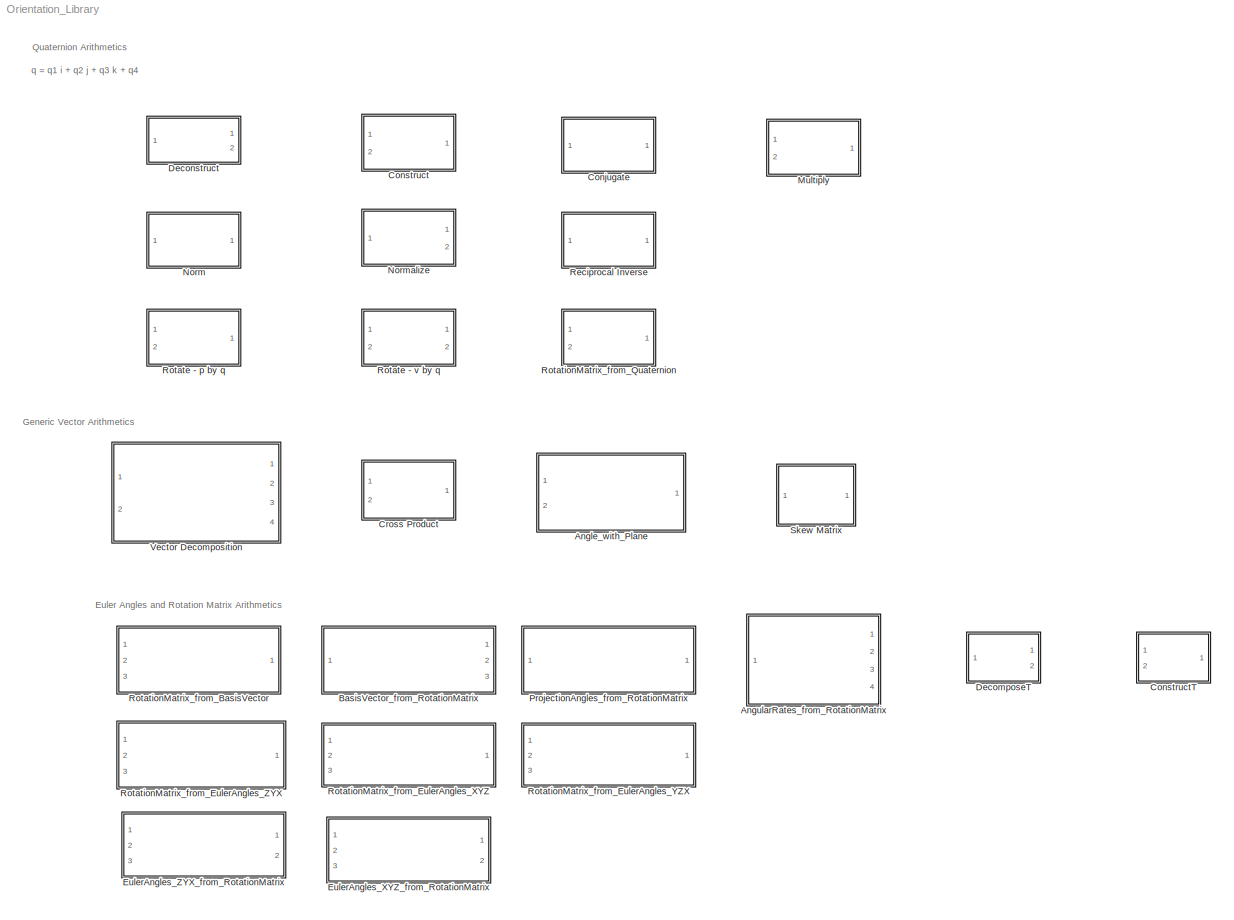
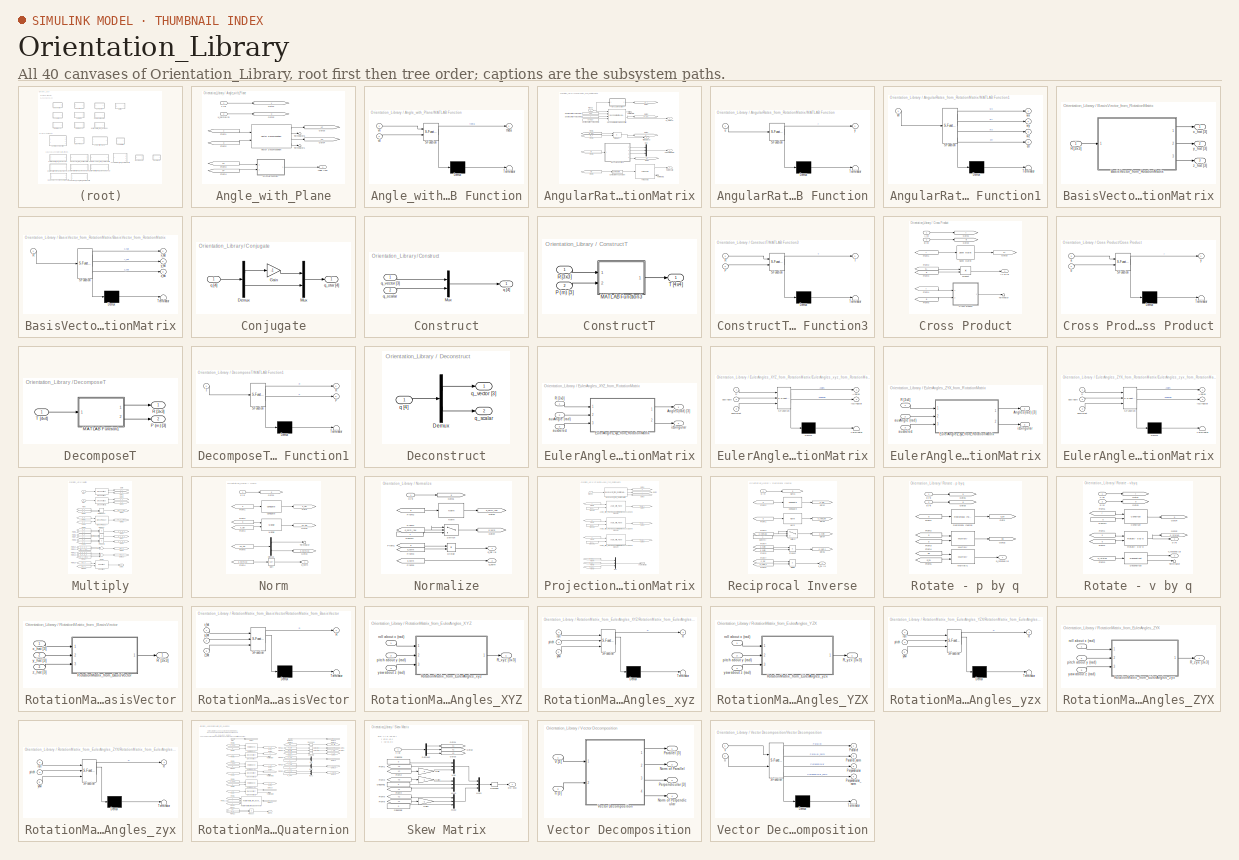
[diagram: thumbnail index - all 40 canvases of the model, root first then tree order]
MODEL Orientation_Library
KIND library
BLOCK [SubSystem] Angle_with_Plane
  FunctionWithSeparateData = off
  MaskHideContents = off
  MinAlgLoopOccurrences = off
  Opaque = off
  Ports = [2, 1]
  PropExecContextOutsideSubsystem = off
  RTWSystemCode = Auto
  RequestExecContextInheritance = off
  SID = 214
BLOCK [Outport] Angle_with_Plane/Angle (rad)
  IconDisplay = Port number
  SID = 229
BLOCK [From] Angle_with_Plane/From1
  GotoTag = v
  SID = 217
BLOCK [From] Angle_with_Plane/From2
  GotoTag = u
  SID = 218
BLOCK [From] Angle_with_Plane/From3
  GotoTag = vN
  SID = 219
BLOCK [From] Angle_with_Plane/From4
  GotoTag = vP
  SID = 220
BLOCK [Goto] Angle_with_Plane/Goto1
  GotoTag = v
  SID = 221
BLOCK [Goto] Angle_with_Plane/Goto2
  GotoTag = u
  SID = 222
BLOCK [Goto] Angle_with_Plane/Goto3
  GotoTag = vP
  SID = 223
BLOCK [Goto] Angle_with_Plane/Goto4
  GotoTag = vN
  SID = 224
BLOCK [SubSystem] Angle_with_Plane/MATLAB Function
  ErrorFcn = Stateflow.Translate.translate
  FunctionWithSeparateData = off
  MaskHideContents = off
  MinAlgLoopOccurrences = off
  Opaque = off
  PermitHierarchicalResolution = ParametersOnly
  Ports = [2, 1]
  PropExecContextOutsideSubsystem = off
  RTWSystemCode = Auto
  RequestExecContextInheritance = off
  SFBlockType = MATLAB Function
  SID = 225
  TreatAsAtomicUnit = on
BLOCK [Demux] Angle_with_Plane/MATLAB Function/ Demux 
  Outputs = 1
  Ports = [1, 1]
  SID = 225::24
BLOCK [S-Function] Angle_with_Plane/MATLAB Function/ SFunction 
  EnableBusSupport = off
  FunctionName = sf_sfun
  PortCounts = [2 2]
  Ports = [2, 2]
  SID = 225::23
  Tag = Stateflow S-Function Orientation_Library 4
BLOCK [Terminator] Angle_with_Plane/MATLAB Function/ Terminator 
  SID = 225::25
BLOCK [Outport] Angle_with_Plane/MATLAB Function/theta
  IconDisplay = Port number
  SID = 225::5
BLOCK [Inport] Angle_with_Plane/MATLAB Function/vd
  IconDisplay = Port number
  Port = 2
  SID = 225::18
BLOCK [Inport] Angle_with_Plane/MATLAB Function/vn
  IconDisplay = Port number
  SID = 225::1
BLOCK [Terminator] Angle_with_Plane/Terminator1
  SID = 226
BLOCK [Terminator] Angle_with_Plane/Terminator5
  SID = 227
BLOCK [Reference] Angle_with_Plane/Vector Decomposition  REF=Orientation_Library/Vector Decomposition
  Ports = [2, 4]
  SID = 354
  SourceBlock = Orientation_Library/Vector Decomposition
  SourceType = SubSystem
BLOCK [Inport] Angle_with_Plane/u_normal [3]
  IconDisplay = Port number
  Port = 2
  SID = 216
BLOCK [Inport] Angle_with_Plane/v [3]
  IconDisplay = Port number
  SID = 215
BLOCK [SubSystem] AngularRates_from_RotationMatrix
  FunctionWithSeparateData = off
  MaskHideContents = off
  MinAlgLoopOccurrences = off
  Opaque = off
  Ports = [1, 4]
  PropExecContextOutsideSubsystem = off
  RTWSystemCode = Auto
  RequestExecContextInheritance = off
  SID = 306
BLOCK [Reference] AngularRates_from_RotationMatrix/Compare\nTo Constant  REF=simulink/Logic and Bit\nOperations/Compare\nTo Constant
  OutDataTypeStr = uint8
  Ports = [1, 1]
  SID = 308
  SourceBlock = simulink/Logic and Bit\nOperations/Compare\nTo Constant
  SourceType = Compare To Constant
  ZeroCross = on
  const = 0
  relop = >
BLOCK [Constant] AngularRates_from_RotationMatrix/Desired Switch Torque (Nm)
  SID = 309
  Value = 250
BLOCK [Constant] AngularRates_from_RotationMatrix/Desired Switch Torque (Nm)1
  SID = 310
BLOCK [Constant] AngularRates_from_RotationMatrix/Desired Switch Torque (Nm)2
  SID = 311
  Value = eye(3,3)
BLOCK [From] AngularRates_from_RotationMatrix/From1
  GotoTag = R_dot
  SID = 312
BLOCK [From] AngularRates_from_RotationMatrix/From2
  GotoTag = R_T
  SID = 313
BLOCK [From] AngularRates_from_RotationMatrix/From3
  GotoTag = W
  SID = 314
BLOCK [From] AngularRates_from_RotationMatrix/From4
  GotoTag = err
  SID = 315
BLOCK [Goto] AngularRates_from_RotationMatrix/Goto1
  GotoTag = R_T
  SID = 316
BLOCK [Goto] AngularRates_from_RotationMatrix/Goto2
  GotoTag = R_dot
  SID = 317
BLOCK [Goto] AngularRates_from_RotationMatrix/Goto3
  GotoTag = W
  SID = 318
BLOCK [Goto] AngularRates_from_RotationMatrix/Goto4
  GotoTag = err
  SID = 319
BLOCK [SubSystem] AngularRates_from_RotationMatrix/MATLAB Function
  ErrorFcn = Stateflow.Translate.translate
  FunctionWithSeparateData = off
  MaskHideContents = off
  MinAlgLoopOccurrences = off
  Opaque = off
  PermitHierarchicalResolution = ParametersOnly
  Ports = [1, 1]
  PropExecContextOutsideSubsystem = off
  RTWSystemCode = Auto
  RequestExecContextInheritance = off
  SFBlockType = MATLAB Function
  SID = 320
  TreatAsAtomicUnit = on
BLOCK [Demux] AngularRates_from_RotationMatrix/MATLAB Function/ Demux 
  Outputs = 1
  Ports = [1, 1]
  SID = 320::27
BLOCK [S-Function] AngularRates_from_RotationMatrix/MATLAB Function/ SFunction 
  EnableBusSupport = off
  FunctionName = sf_sfun
  PortCounts = [1 2]
  Ports = [1, 2]
  SID = 320::26
  Tag = Stateflow S-Function Orientation_Library 18
BLOCK [Terminator] AngularRates_from_RotationMatrix/MATLAB Function/ Terminator 
  SID = 320::28
BLOCK [Inport] AngularRates_from_RotationMatrix/MATLAB Function/u
  IconDisplay = Port number
  SID = 320::1
BLOCK [Outport] AngularRates_from_RotationMatrix/MATLAB Function/y
  IconDisplay = Port number
  SID = 320::5
BLOCK [SubSystem] AngularRates_from_RotationMatrix/MATLAB Function1
  ErrorFcn = Stateflow.Translate.translate
  FunctionWithSeparateData = off
  MaskHideContents = off
  MinAlgLoopOccurrences = off
  Opaque = off
  PermitHierarchicalResolution = ParametersOnly
  Ports = [1, 4]
  PropExecContextOutsideSubsystem = off
  RTWSystemCode = Auto
  RequestExecContextInheritance = off
  SFBlockType = MATLAB Function
  SID = 321
  TreatAsAtomicUnit = on
BLOCK [Demux] AngularRates_from_RotationMatrix/MATLAB Function1/ Demux 
  Outputs = 1
  Ports = [1, 1]
  SID = 321::34
BLOCK [S-Function] AngularRates_from_RotationMatrix/MATLAB Function1/ SFunction 
  EnableBusSupport = off
  FunctionName = sf_sfun
  PortCounts = [1 5]
  Ports = [1, 5]
  SID = 321::33
  Tag = Stateflow S-Function Orientation_Library 26
BLOCK [Terminator] AngularRates_from_RotationMatrix/MATLAB Function1/ Terminator 
  SID = 321::35
BLOCK [Inport] AngularRates_from_RotationMatrix/MATLAB Function1/W
  IconDisplay = Port number
  SID = 321::1
BLOCK [Outport] AngularRates_from_RotationMatrix/MATLAB Function1/err
  IconDisplay = Port number
  Port = 4
  SID = 321::24
BLOCK [Outport] AngularRates_from_RotationMatrix/MATLAB Function1/wx
  IconDisplay = Port number
  SID = 321::5
BLOCK [Outport] AngularRates_from_RotationMatrix/MATLAB Function1/wy
  IconDisplay = Port number
  Port = 2
  SID = 321::22
BLOCK [Outport] AngularRates_from_RotationMatrix/MATLAB Function1/wz
  IconDisplay = Port number
  Port = 3
  SID = 321::23
BLOCK [Mux] AngularRates_from_RotationMatrix/Mux
  DisplayOption = bar
  Inputs = 3
  Ports = [3, 1]
  SID = 322
BLOCK [Product] AngularRates_from_RotationMatrix/Product
  InputSameDT = off
  Multiplication = Matrix(*)
  OutDataTypeStr = Inherit: Inherit via internal rule
  Ports = [2, 1]
  SID = 323
  SaturateOnIntegerOverflow = off
BLOCK [Inport] AngularRates_from_RotationMatrix/R [3x3]
  IconDisplay = Port number
  SID = 307
BLOCK [Outport] AngularRates_from_RotationMatrix/R_dot [3x3]
  IconDisplay = Port number
  SID = 328
BLOCK [Outport] AngularRates_from_RotationMatrix/Rate Invalid
  IconDisplay = Port number
  Port = 4
  SID = 331
BLOCK [Reference] AngularRates_from_RotationMatrix/Second-Order\nLow-Pass Filter  REF=quarc_library/Continuous/Second-Order\nLow-Pass Filter
  Ports = [4, 2]
  SID = 324
  SourceBlock = quarc_library/Continuous/Second-Order\nLow-Pass Filter
  SourceType = Second-Order Low-Pass Filter
  input_init = 0
  input_width = 1
  input_zeta = 1
  params_source = External (input ports)
BLOCK [Terminator] AngularRates_from_RotationMatrix/Terminator1
  SID = 325
BLOCK [Terminator] AngularRates_from_RotationMatrix/Terminator5
  SID = 326
BLOCK [Reference] AngularRates_from_RotationMatrix/Threshold  REF=quarc_library/Discontinuities/Threshold
  Ports = [1, 2]
  SID = 327
  SourceBlock = quarc_library/Discontinuities/Threshold
  SourceType = Threshold
  duration = qc_get_step_size*5000
  operator = >
  param_src = Specify via dialog
  threshold = 0
BLOCK [Outport] AngularRates_from_RotationMatrix/W (rad//s) [3x3]
  IconDisplay = Port number
  Port = 3
  SID = 330
BLOCK [Outport] AngularRates_from_RotationMatrix/omega (rad//s) [3]
  IconDisplay = Port number
  Port = 2
  SID = 329
BLOCK [SubSystem] BasisVector_from_RotationMatrix
  FunctionWithSeparateData = off
  MaskHideContents = off
  MinAlgLoopOccurrences = off
  Opaque = off
  Ports = [1, 3]
  PropExecContextOutsideSubsystem = off
  RTWSystemCode = Auto
  RequestExecContextInheritance = off
  SID = 254
BLOCK [SubSystem] BasisVector_from_RotationMatrix/BasisVector_from_RotationMatrix
  ErrorFcn = Stateflow.Translate.translate
  FunctionWithSeparateData = off
  MaskHideContents = off
  MinAlgLoopOccurrences = off
  Opaque = off
  PermitHierarchicalResolution = ParametersOnly
  Ports = [1, 3]
  PropExecContextOutsideSubsystem = off
  RTWSystemCode = Auto
  RequestExecContextInheritance = off
  SFBlockType = MATLAB Function
  SID = 256
  TreatAsAtomicUnit = on
BLOCK [Demux] BasisVector_from_RotationMatrix/BasisVector_from_RotationMatrix/ Demux 
  Outputs = 1
  Ports = [1, 1]
  SID = 256::25
BLOCK [S-Function] BasisVector_from_RotationMatrix/BasisVector_from_RotationMatrix/ SFunction 
  EnableBusSupport = off
  FunctionName = sf_sfun
  PortCounts = [1 4]
  Ports = [1, 4]
  SID = 256::24
  Tag = Stateflow S-Function Orientation_Library 2
BLOCK [Terminator] BasisVector_from_RotationMatrix/BasisVector_from_RotationMatrix/ Terminator 
  SID = 256::26
BLOCK [Inport] BasisVector_from_RotationMatrix/BasisVector_from_RotationMatrix/R
  IconDisplay = Port number
  SID = 256::1
BLOCK [Outport] BasisVector_from_RotationMatrix/BasisVector_from_RotationMatrix/x_hat
  IconDisplay = Port number
  SID = 256::5
BLOCK [Outport] BasisVector_from_RotationMatrix/BasisVector_from_RotationMatrix/y_hat
  IconDisplay = Port number
  Port = 2
  SID = 256::18
BLOCK [Outport] BasisVector_from_RotationMatrix/BasisVector_from_RotationMatrix/z_hat
  IconDisplay = Port number
  Port = 3
  SID = 256::19
BLOCK [Inport] BasisVector_from_RotationMatrix/R [3x3]
  IconDisplay = Port number
  SID = 255
BLOCK [Outport] BasisVector_from_RotationMatrix/x_hat [3]
  IconDisplay = Port number
  SID = 257
BLOCK [Outport] BasisVector_from_RotationMatrix/y_hat [3]
  IconDisplay = Port number
  Port = 2
  SID = 258
BLOCK [Outport] BasisVector_from_RotationMatrix/z_hat [3]
  IconDisplay = Port number
  Port = 3
  SID = 259
BLOCK [SubSystem] Conjugate
  FunctionWithSeparateData = off
  MaskHideContents = off
  MinAlgLoopOccurrences = off
  Opaque = off
  Ports = [1, 1]
  PropExecContextOutsideSubsystem = off
  RTWSystemCode = Auto
  RequestExecContextInheritance = off
  SID = 1
BLOCK [Demux] Conjugate/Demux
  DisplayOption = bar
  Outputs = [3 1]
  Ports = [1, 2]
  SID = 4
BLOCK [Gain] Conjugate/Gain
  Gain = -1
  OutDataTypeStr = Inherit: Inherit via internal rule
  ParamDataTypeStr = Inherit: Inherit via internal rule
  SID = 5
  SaturateOnIntegerOverflow = off
BLOCK [Mux] Conjugate/Mux
  DisplayOption = bar
  Inputs = [3 1]
  Ports = [2, 1]
  SID = 6
BLOCK [Inport] Conjugate/q [4]
  IconDisplay = Port number
  SID = 2
BLOCK [Outport] Conjugate/q_star [4]
  IconDisplay = Port number
  SID = 3
BLOCK [SubSystem] Construct
  FunctionWithSeparateData = off
  MaskHideContents = off
  MinAlgLoopOccurrences = off
  Opaque = off
  Ports = [2, 1]
  PropExecContextOutsideSubsystem = off
  RTWSystemCode = Auto
  RequestExecContextInheritance = off
  SID = 31
BLOCK [Mux] Construct/Mux
  DisplayOption = bar
  Inputs = [3 1]
  Ports = [2, 1]
  SID = 35
BLOCK [Outport] Construct/q [4]
  IconDisplay = Port number
  SID = 36
BLOCK [Inport] Construct/q_scalar
  IconDisplay = Port number
  Port = 2
  SID = 37
BLOCK [Inport] Construct/q_vector [3]
  IconDisplay = Port number
  SID = 32
BLOCK [SubSystem] ConstructT
  FunctionWithSeparateData = off
  MaskHideContents = off
  MinAlgLoopOccurrences = off
  Opaque = off
  Ports = [2, 1]
  PropExecContextOutsideSubsystem = off
  RTWSystemCode = Auto
  RequestExecContextInheritance = off
  SID = 372
BLOCK [SubSystem] ConstructT/MATLAB Function3
  ErrorFcn = Stateflow.Translate.translate
  FunctionWithSeparateData = off
  MaskHideContents = off
  MinAlgLoopOccurrences = off
  Opaque = off
  PermitHierarchicalResolution = ParametersOnly
  Ports = [2, 1]
  PropExecContextOutsideSubsystem = off
  RTWSystemCode = Auto
  RequestExecContextInheritance = off
  SFBlockType = MATLAB Function
  SID = 379
  TreatAsAtomicUnit = on
BLOCK [Demux] ConstructT/MATLAB Function3/ Demux 
  Outputs = 1
  Ports = [1, 1]
  SID = 379::29
BLOCK [S-Function] ConstructT/MATLAB Function3/ SFunction 
  EnableBusSupport = off
  FunctionName = sf_sfun
  PortCounts = [2 2]
  Ports = [2, 2]
  SID = 379::28
  Tag = Stateflow S-Function Orientation_Library 12
BLOCK [Terminator] ConstructT/MATLAB Function3/ Terminator 
  SID = 379::30
BLOCK [Inport] ConstructT/MATLAB Function3/P
  IconDisplay = Port number
  Port = 2
  SID = 379::22
BLOCK [Inport] ConstructT/MATLAB Function3/R
  IconDisplay = Port number
  SID = 379::21
BLOCK [Outport] ConstructT/MATLAB Function3/T
  IconDisplay = Port number
  SID = 379::23
BLOCK [Inport] ConstructT/P (m) [3]
  IconDisplay = Port number
  Port = 2
  SID = 378
BLOCK [Inport] ConstructT/R [3x3]
  IconDisplay = Port number
  SID = 377
BLOCK [Outport] ConstructT/T [4x4]
  IconDisplay = Port number
  SID = 380
BLOCK [SubSystem] Cross Product
  FunctionWithSeparateData = off
  MaskHideContents = off
  MinAlgLoopOccurrences = off
  Opaque = off
  Ports = [2, 1]
  PropExecContextOutsideSubsystem = off
  RTWSystemCode = Auto
  RequestExecContextInheritance = off
  SID = 38
BLOCK [Inport] Cross Product/A [3]
  IconDisplay = Port number
  SID = 39
BLOCK [Outport] Cross Product/A x B [3]
  IconDisplay = Port number
  SID = 42
BLOCK [Inport] Cross Product/B [3]
  IconDisplay = Port number
  Port = 2
  SID = 40
BLOCK [SubSystem] Cross Product/Cross Product
  ErrorFcn = Stateflow.Translate.translate
  FunctionWithSeparateData = off
  MaskHideContents = off
  MinAlgLoopOccurrences = off
  Opaque = off
  PermitHierarchicalResolution = ParametersOnly
  Ports = [2, 1]
  PropExecContextOutsideSubsystem = off
  RTWSystemCode = Auto
  RequestExecContextInheritance = off
  SFBlockType = MATLAB Function
  SID = 41
  TreatAsAtomicUnit = on
BLOCK [Demux] Cross Product/Cross Product/ Demux 
  Outputs = 1
  Ports = [1, 1]
  SID = 41::36
BLOCK [S-Function] Cross Product/Cross Product/ SFunction 
  EnableBusSupport = off
  FunctionName = sf_sfun
  PortCounts = [2 2]
  Ports = [2, 2]
  SID = 41::35
  Tag = Stateflow S-Function Orientation_Library 7
BLOCK [Terminator] Cross Product/Cross Product/ Terminator 
  SID = 41::37
BLOCK [Inport] Cross Product/Cross Product/a
  IconDisplay = Port number
  SID = 41::1
BLOCK [Inport] Cross Product/Cross Product/b
  IconDisplay = Port number
  Port = 2
  SID = 41::18
BLOCK [Outport] Cross Product/Cross Product/y
  IconDisplay = Port number
  SID = 41::5
BLOCK [From] Cross Product/From1
  SID = 430
BLOCK [From] Cross Product/From2
  GotoTag = SA
  SID = 432
BLOCK [From] Cross Product/From3
  GotoTag = B
  SID = 434
BLOCK [From] Cross Product/From4
  SID = 435
BLOCK [From] Cross Product/From5
  GotoTag = B
  SID = 436
BLOCK [Goto] Cross Product/Goto1
  SID = 427
BLOCK [Goto] Cross Product/Goto2
  GotoTag = B
  SID = 428
BLOCK [Goto] Cross Product/Goto3
  GotoTag = SA
  SID = 431
BLOCK [Product] Cross Product/Product
  InputSameDT = off
  Multiplication = Matrix(*)
  OutDataTypeStr = Inherit: Inherit via internal rule
  Ports = [2, 1]
  SID = 433
  SaturateOnIntegerOverflow = off
BLOCK [Reference] Cross Product/Skew Matrix  REF=Orientation_Library/Skew Matrix
  Ports = [1, 1]
  SID = 429
  SourceBlock = Orientation_Library/Skew Matrix
  SourceType = SubSystem
BLOCK [Terminator] Cross Product/Terminator
  SID = 437
BLOCK [SubSystem] DecomposeT
  FunctionWithSeparateData = off
  MaskHideContents = off
  MinAlgLoopOccurrences = off
  Opaque = off
  Ports = [1, 2]
  PropExecContextOutsideSubsystem = off
  RTWSystemCode = Auto
  RequestExecContextInheritance = off
  SID = 371
BLOCK [SubSystem] DecomposeT/MATLAB Function1
  ErrorFcn = Stateflow.Translate.translate
  FunctionWithSeparateData = off
  MaskHideContents = off
  MinAlgLoopOccurrences = off
  Opaque = off
  PermitHierarchicalResolution = ParametersOnly
  Ports = [1, 2]
  PropExecContextOutsideSubsystem = off
  RTWSystemCode = Auto
  RequestExecContextInheritance = off
  SFBlockType = MATLAB Function
  SID = 374
  TreatAsAtomicUnit = on
BLOCK [Demux] DecomposeT/MATLAB Function1/ Demux 
  Outputs = 1
  Ports = [1, 1]
  SID = 374::26
BLOCK [S-Function] DecomposeT/MATLAB Function1/ SFunction 
  EnableBusSupport = off
  FunctionName = sf_sfun
  PortCounts = [1 3]
  Ports = [1, 3]
  SID = 374::25
  Tag = Stateflow S-Function Orientation_Library 11
BLOCK [Terminator] DecomposeT/MATLAB Function1/ Terminator 
  SID = 374::27
BLOCK [Outport] DecomposeT/MATLAB Function1/P
  IconDisplay = Port number
  Port = 2
  SID = 374::5
BLOCK [Outport] DecomposeT/MATLAB Function1/R
  IconDisplay = Port number
  SID = 374::20
BLOCK [Inport] DecomposeT/MATLAB Function1/T
  IconDisplay = Port number
  SID = 374::19
BLOCK [Outport] DecomposeT/P (m) [3]
  IconDisplay = Port number
  Port = 2
  SID = 376
BLOCK [Outport] DecomposeT/R [3x3]
  IconDisplay = Port number
  SID = 375
BLOCK [Inport] DecomposeT/T [4x4]
  IconDisplay = Port number
  SID = 373
BLOCK [SubSystem] Deconstruct
  FunctionWithSeparateData = off
  MaskHideContents = off
  MinAlgLoopOccurrences = off
  Opaque = off
  Ports = [1, 2]
  PropExecContextOutsideSubsystem = off
  RTWSystemCode = Auto
  RequestExecContextInheritance = off
  SID = 24
BLOCK [Demux] Deconstruct/Demux
  DisplayOption = bar
  Outputs = [3 1]
  Ports = [1, 2]
  SID = 26
BLOCK [Inport] Deconstruct/q [4]
  IconDisplay = Port number
  SID = 25
BLOCK [Outport] Deconstruct/q_scalar
  IconDisplay = Port number
  Port = 2
  SID = 30
BLOCK [Outport] Deconstruct/q_vector [3]
  IconDisplay = Port number
  SID = 29
BLOCK [SubSystem] EulerAngles_XYZ_from_RotationMatrix
  FunctionWithSeparateData = off
  MaskHideContents = off
  MinAlgLoopOccurrences = off
  Opaque = off
  Ports = [3, 2]
  PropExecContextOutsideSubsystem = off
  RTWSystemCode = Auto
  RequestExecContextInheritance = off
  SID = 305
BLOCK [Outport] EulerAngles_XYZ_from_RotationMatrix/Angles (rad) [3]
  IconDisplay = Port number
  SID = 363
BLOCK [SubSystem] EulerAngles_XYZ_from_RotationMatrix/EulerAngles_xyz_from_RotationMatrix
  ErrorFcn = Stateflow.Translate.translate
  FunctionWithSeparateData = off
  MaskHideContents = off
  MinAlgLoopOccurrences = off
  Opaque = off
  PermitHierarchicalResolution = ParametersOnly
  Ports = [3, 2]
  PropExecContextOutsideSubsystem = off
  RTWSystemCode = Auto
  RequestExecContextInheritance = off
  SFBlockType = MATLAB Function
  SID = 362
  TreatAsAtomicUnit = on
BLOCK [Demux] EulerAngles_XYZ_from_RotationMatrix/EulerAngles_xyz_from_RotationMatrix/ Demux 
  Outputs = 1
  Ports = [1, 1]
  SID = 362::59
BLOCK [S-Function] EulerAngles_XYZ_from_RotationMatrix/EulerAngles_xyz_from_RotationMatrix/ SFunction 
  EnableBusSupport = off
  FunctionName = sf_sfun
  PortCounts = [3 3]
  Ports = [3, 3]
  SID = 362::58
  Tag = Stateflow S-Function Orientation_Library 8
BLOCK [Terminator] EulerAngles_XYZ_from_RotationMatrix/EulerAngles_xyz_from_RotationMatrix/ Terminator 
  SID = 362::60
BLOCK [Outport] EulerAngles_XYZ_from_RotationMatrix/EulerAngles_xyz_from_RotationMatrix/Angles
  IconDisplay = Port number
  SID = 362::38
BLOCK [Inport] EulerAngles_XYZ_from_RotationMatrix/EulerAngles_xyz_from_RotationMatrix/R
  IconDisplay = Port number
  SID = 362::37
BLOCK [Inport] EulerAngles_XYZ_from_RotationMatrix/EulerAngles_xyz_from_RotationMatrix/auxAngle
  IconDisplay = Port number
  Port = 2
  SID = 362::40
BLOCK [Inport] EulerAngles_XYZ_from_RotationMatrix/EulerAngles_xyz_from_RotationMatrix/auxSelect
  IconDisplay = Port number
  Port = 3
  SID = 362::41
BLOCK [Outport] EulerAngles_XYZ_from_RotationMatrix/EulerAngles_xyz_from_RotationMatrix/isSingular
  IconDisplay = Port number
  Port = 2
  SID = 362::39
BLOCK [Inport] EulerAngles_XYZ_from_RotationMatrix/R [3x3]
  IconDisplay = Port number
  SID = 359
BLOCK [Inport] EulerAngles_XYZ_from_RotationMatrix/auxAngle (rad)
  IconDisplay = Port number
  Port = 2
  SID = 360
BLOCK [Inport] EulerAngles_XYZ_from_RotationMatrix/auxSelect
  IconDisplay = Port number
  Port = 3
  SID = 361
BLOCK [Outport] EulerAngles_XYZ_from_RotationMatrix/isSingular
  IconDisplay = Port number
  Port = 2
  SID = 364
BLOCK [SubSystem] EulerAngles_ZYX_from_RotationMatrix
  FunctionWithSeparateData = off
  MaskHideContents = off
  MinAlgLoopOccurrences = off
  Opaque = off
  Ports = [3, 2]
  PropExecContextOutsideSubsystem = off
  RTWSystemCode = Auto
  RequestExecContextInheritance = off
  SID = 298
BLOCK [Outport] EulerAngles_ZYX_from_RotationMatrix/Angles (rad) [3]
  IconDisplay = Port number
  SID = 303
BLOCK [SubSystem] EulerAngles_ZYX_from_RotationMatrix/EulerAngles_zyx_from_RotationMatrix
  ErrorFcn = Stateflow.Translate.translate
  FunctionWithSeparateData = off
  MaskHideContents = off
  MinAlgLoopOccurrences = off
  Opaque = off
  PermitHierarchicalResolution = ParametersOnly
  Ports = [3, 2]
  PropExecContextOutsideSubsystem = off
  RTWSystemCode = Auto
  RequestExecContextInheritance = off
  SFBlockType = MATLAB Function
  SID = 302
  TreatAsAtomicUnit = on
BLOCK [Demux] EulerAngles_ZYX_from_RotationMatrix/EulerAngles_zyx_from_RotationMatrix/ Demux 
  Outputs = 1
  Ports = [1, 1]
  SID = 302::63
BLOCK [S-Function] EulerAngles_ZYX_from_RotationMatrix/EulerAngles_zyx_from_RotationMatrix/ SFunction 
  EnableBusSupport = off
  FunctionName = sf_sfun
  PortCounts = [3 3]
  Ports = [3, 3]
  SID = 302::62
  Tag = Stateflow S-Function Orientation_Library 27
BLOCK [Terminator] EulerAngles_ZYX_from_RotationMatrix/EulerAngles_zyx_from_RotationMatrix/ Terminator 
  SID = 302::64
BLOCK [Outport] EulerAngles_ZYX_from_RotationMatrix/EulerAngles_zyx_from_RotationMatrix/Angles
  IconDisplay = Port number
  SID = 302::38
BLOCK [Inport] EulerAngles_ZYX_from_RotationMatrix/EulerAngles_zyx_from_RotationMatrix/R
  IconDisplay = Port number
  SID = 302::37
BLOCK [Inport] EulerAngles_ZYX_from_RotationMatrix/EulerAngles_zyx_from_RotationMatrix/auxAngle
  IconDisplay = Port number
  Port = 2
  SID = 302::40
BLOCK [Inport] EulerAngles_ZYX_from_RotationMatrix/EulerAngles_zyx_from_RotationMatrix/auxSelect
  IconDisplay = Port number
  Port = 3
  SID = 302::41
BLOCK [Outport] EulerAngles_ZYX_from_RotationMatrix/EulerAngles_zyx_from_RotationMatrix/isSingular
  IconDisplay = Port number
  Port = 2
  SID = 302::39
BLOCK [Inport] EulerAngles_ZYX_from_RotationMatrix/R [3x3]
  IconDisplay = Port number
  SID = 299
BLOCK [Inport] EulerAngles_ZYX_from_RotationMatrix/auxAngle (rad)
  IconDisplay = Port number
  Port = 2
  SID = 300
BLOCK [Inport] EulerAngles_ZYX_from_RotationMatrix/auxSelect
  IconDisplay = Port number
  Port = 3
  SID = 301
BLOCK [Outport] EulerAngles_ZYX_from_RotationMatrix/isSingular
  IconDisplay = Port number
  Port = 2
  SID = 304
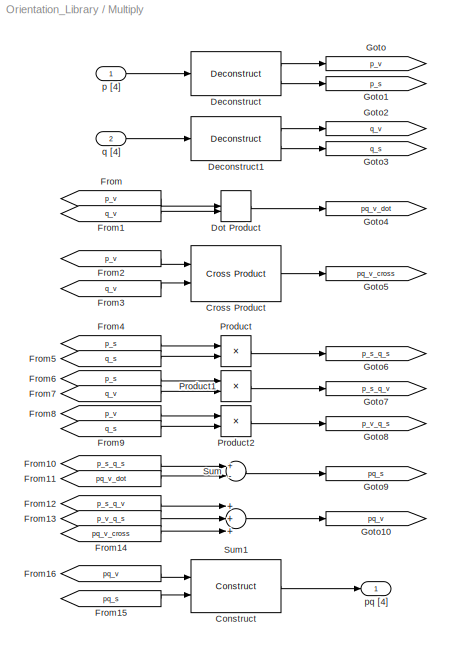
BLOCK [SubSystem] Multiply
  FunctionWithSeparateData = off
  MaskHideContents = off
  MinAlgLoopOccurrences = off
  Opaque = off
  Ports = [2, 1]
  PropExecContextOutsideSubsystem = off
  RTWSystemCode = Auto
  RequestExecContextInheritance = off
  SID = 19
BLOCK [Reference] Multiply/Construct  REF=Orientation_Library/Construct
  Ports = [2, 1]
  SID = 335
  SourceBlock = Orientation_Library/Construct
  SourceType = SubSystem
BLOCK [Reference] Multiply/Cross Product  REF=Orientation_Library/Cross Product
  Ports = [2, 1]
  SID = 334
  SourceBlock = Orientation_Library/Cross Product
  SourceType = SubSystem
BLOCK [Reference] Multiply/Deconstruct  REF=Orientation_Library/Deconstruct
  Ports = [1, 2]
  SID = 332
  SourceBlock = Orientation_Library/Deconstruct
  SourceType = SubSystem
BLOCK [Reference] Multiply/Deconstruct1  REF=Orientation_Library/Deconstruct
  Ports = [1, 2]
  SID = 333
  SourceBlock = Orientation_Library/Deconstruct
  SourceType = SubSystem
BLOCK [DotProduct] Multiply/Dot Product
  OutDataTypeStr = Inherit: Inherit via internal rule
  SID = 50
BLOCK [From] Multiply/From
  GotoTag = p_v
  SID = 51
BLOCK [From] Multiply/From1
  GotoTag = q_v
  SID = 52
BLOCK [From] Multiply/From10
  GotoTag = p_s_q_s
  SID = 72
BLOCK [From] Multiply/From11
  GotoTag = pq_v_dot
  SID = 73
BLOCK [From] Multiply/From12
  GotoTag = p_s_q_v
  SID = 75
BLOCK [From] Multiply/From13
  GotoTag = p_v_q_s
  SID = 76
BLOCK [From] Multiply/From14
  GotoTag = pq_v_cross
  SID = 79
BLOCK [From] Multiply/From15
  GotoTag = pq_s
  SID = 82
BLOCK [From] Multiply/From16
  GotoTag = pq_v
  SID = 83
BLOCK [From] Multiply/From2
  GotoTag = p_v
  SID = 54
BLOCK [From] Multiply/From3
  GotoTag = q_v
  SID = 55
BLOCK [From] Multiply/From4
  GotoTag = p_s
  SID = 59
BLOCK [From] Multiply/From5
  GotoTag = q_s
  SID = 60
BLOCK [From] Multiply/From6
  GotoTag = p_s
  SID = 62
BLOCK [From] Multiply/From7
  GotoTag = q_v
  SID = 63
BLOCK [From] Multiply/From8
  GotoTag = p_v
  SID = 66
BLOCK [From] Multiply/From9
  GotoTag = q_s
  SID = 67
BLOCK [Goto] Multiply/Goto
  GotoTag = p_v
  SID = 46
BLOCK [Goto] Multiply/Goto1
  GotoTag = p_s
  SID = 47
BLOCK [Goto] Multiply/Goto10
  GotoTag = pq_v
  SID = 77
BLOCK [Goto] Multiply/Goto2
  GotoTag = q_v
  SID = 48
BLOCK [Goto] Multiply/Goto3
  GotoTag = q_s
  SID = 49
BLOCK [Goto] Multiply/Goto4
  GotoTag = pq_v_dot
  SID = 53
BLOCK [Goto] Multiply/Goto5
  GotoTag = pq_v_cross
  SID = 57
BLOCK [Goto] Multiply/Goto6
  GotoTag = p_s_q_s
  SID = 61
BLOCK [Goto] Multiply/Goto7
  GotoTag = p_s_q_v
  SID = 64
BLOCK [Goto] Multiply/Goto8
  GotoTag = p_v_q_s
  SID = 68
BLOCK [Goto] Multiply/Goto9
  GotoTag = pq_s
  SID = 74
BLOCK [Product] Multiply/Product
  InputSameDT = off
  OutDataTypeStr = Inherit: Inherit via internal rule
  Ports = [2, 1]
  SID = 58
  SaturateOnIntegerOverflow = off
BLOCK [Product] Multiply/Product1
  InputSameDT = off
  OutDataTypeStr = Inherit: Inherit via internal rule
  Ports = [2, 1]
  SID = 65
  SaturateOnIntegerOverflow = off
BLOCK [Product] Multiply/Product2
  InputSameDT = off
  OutDataTypeStr = Inherit: Inherit via internal rule
  Ports = [2, 1]
  SID = 69
  SaturateOnIntegerOverflow = off
BLOCK [Sum] Multiply/Sum
  InputSameDT = off
  Inputs = +-
  OutDataTypeStr = Inherit: Inherit via internal rule
  Ports = [2, 1]
  SID = 71
  SaturateOnIntegerOverflow = off
BLOCK [Sum] Multiply/Sum1
  InputSameDT = off
  Inputs = +++
  OutDataTypeStr = Inherit: Inherit via internal rule
  Ports = [3, 1]
  SID = 78
  SaturateOnIntegerOverflow = off
BLOCK [Inport] Multiply/p [4]
  IconDisplay = Port number
  SID = 20
BLOCK [Outport] Multiply/pq [4]
  IconDisplay = Port number
  SID = 21
BLOCK [Inport] Multiply/q [4]
  IconDisplay = Port number
  Port = 2
  SID = 23
BLOCK [SubSystem] Norm
  FunctionWithSeparateData = off
  MaskHideContents = off
  MinAlgLoopOccurrences = off
  Opaque = off
  Ports = [1, 1]
  PropExecContextOutsideSubsystem = off
  RTWSystemCode = Auto
  RequestExecContextInheritance = off
  SID = 14
BLOCK [Reference] Norm/Conjugate  REF=Orientation_Library/Conjugate
  Ports = [1, 1]
  SID = 336
  SourceBlock = Orientation_Library/Conjugate
  SourceType = SubSystem
BLOCK [Demux] Norm/Demux
  DisplayOption = bar
  Outputs = [3 1]
  Ports = [1, 2]
  SID = 685
BLOCK [From] Norm/From1
  GotoTag = q
  SID = 87
BLOCK [From] Norm/From2
  GotoTag = q
  SID = 88
BLOCK [From] Norm/From3
  GotoTag = q_star
  SID = 89
BLOCK [From] Norm/From4
  GotoTag = q_norm_sq
  SID = 92
BLOCK [From] Norm/From5
  GotoTag = qq_star
  SID = 686
BLOCK [Goto] Norm/Goto
  GotoTag = q_star
  SID = 84
BLOCK [Goto] Norm/Goto1
  GotoTag = q
  SID = 86
BLOCK [Goto] Norm/Goto2
  GotoTag = qq_star
  SID = 90
BLOCK [Goto] Norm/Goto3
  GotoTag = q_norm_sq
  SID = 687
BLOCK [Reference] Norm/Multiply  REF=Orientation_Library/Multiply
  Ports = [2, 1]
  SID = 684
  SourceBlock = Orientation_Library/Multiply
  SourceType = SubSystem
BLOCK [Sqrt] Norm/Sqrt
  SID = 93
BLOCK [Terminator] Norm/Terminator
  SID = 688
BLOCK [Inport] Norm/q [4]
  IconDisplay = Port number
  SID = 15
BLOCK [Outport] Norm/q_norm
  IconDisplay = Port number
  SID = 17
BLOCK [SubSystem] Normalize
  FunctionWithSeparateData = off
  MaskHideContents = off
  MinAlgLoopOccurrences = off
  Opaque = off
  Ports = [1, 2]
  PropExecContextOutsideSubsystem = off
  RTWSystemCode = Auto
  RequestExecContextInheritance = off
  SID = 10
BLOCK [Product] Normalize/Divide
  InputSameDT = off
  Inputs = */
  OutDataTypeStr = Inherit: Inherit via internal rule
  Ports = [2, 1]
  RndMeth = Floor
  SID = 116
  SaturateOnIntegerOverflow = off
BLOCK [Constant] Normalize/Dummy
  SID = 119
BLOCK [From] Normalize/From1
  GotoTag = q
  SID = 117
BLOCK [From] Normalize/From2
  GotoTag = q
  SID = 114
BLOCK [From] Normalize/From3
  GotoTag = q_norm
  SID = 118
BLOCK [From] Normalize/From4
  GotoTag = q_norm_raw
  SID = 120
BLOCK [From] Normalize/From5
  GotoTag = q_norm
  SID = 123
BLOCK [Goto] Normalize/Goto1
  GotoTag = q
  SID = 113
BLOCK [Goto] Normalize/Goto2
  GotoTag = q_norm_raw
  SID = 115
BLOCK [Goto] Normalize/Goto4
  GotoTag = q_norm
  SID = 121
BLOCK [Reference] Normalize/Norm  REF=Orientation_Library/Norm
  Ports = [1, 1]
  SID = 340
  SourceBlock = Orientation_Library/Norm
  SourceType = SubSystem
BLOCK [Switch] Normalize/Switch
  Criteria = u2 > Threshold
  InputSameDT = off
  SID = 122
  SaturateOnIntegerOverflow = off
  Threshold = 1e-4
BLOCK [Inport] Normalize/q [4]
  IconDisplay = Port number
  SID = 11
BLOCK [Outport] Normalize/q_hat [4]
  IconDisplay = Port number
  SID = 12
BLOCK [Outport] Normalize/q_norm
  IconDisplay = Port number
  Port = 2
  SID = 13
BLOCK [SubSystem] ProjectionAngles_from_RotationMatrix
  FunctionWithSeparateData = off
  MaskHideContents = off
  MinAlgLoopOccurrences = off
  Opaque = off
  Ports = [1, 1]
  PropExecContextOutsideSubsystem = off
  RTWSystemCode = Auto
  RequestExecContextInheritance = off
  SID = 231
BLOCK [Reference] ProjectionAngles_from_RotationMatrix/Angle_with_Plane\n(About X)\n(Betweeb Local Y and Global Z)   REF=Orientation_Library/Angle_with_Plane
  Ports = [2, 1]
  SID = 356
  SourceBlock = Orientation_Library/Angle_with_Plane
  SourceType = SubSystem
BLOCK [Reference] ProjectionAngles_from_RotationMatrix/Angle_with_Plane\n(About Y)\n(Between Local Z and Global X)  REF=Orientation_Library/Angle_with_Plane
  Ports = [2, 1]
  SID = 357
  SourceBlock = Orientation_Library/Angle_with_Plane
  SourceType = SubSystem
BLOCK [Reference] ProjectionAngles_from_RotationMatrix/Angle_with_Plane\n(About Z)\n(Between Local X and Global Y)  REF=Orientation_Library/Angle_with_Plane
  Ports = [2, 1]
  SID = 358
  SourceBlock = Orientation_Library/Angle_with_Plane
  SourceType = SubSystem
BLOCK [Outport] ProjectionAngles_from_RotationMatrix/Angles (rad) [3]
  IconDisplay = Port number
  SID = 253
BLOCK [Reference] ProjectionAngles_from_RotationMatrix/BasisVector_from_RotationMatrix  REF=Orientation_Library/BasisVector_from_RotationMatrix
  Ports = [1, 3]
  SID = 355
  SourceBlock = Orientation_Library/BasisVector_from_RotationMatrix
  SourceType = SubSystem
BLOCK [From] ProjectionAngles_from_RotationMatrix/From1
  GotoTag = y
  SID = 237
BLOCK [From] ProjectionAngles_from_RotationMatrix/From2
  GotoTag = z
  SID = 238
BLOCK [From] ProjectionAngles_from_RotationMatrix/From3
  GotoTag = x
  SID = 239
BLOCK [From] ProjectionAngles_from_RotationMatrix/From4
  GotoTag = theta_x
  SID = 240
BLOCK [From] ProjectionAngles_from_RotationMatrix/From5
  GotoTag = theta_y
  SID = 241
BLOCK [From] ProjectionAngles_from_RotationMatrix/From6
  GotoTag = theta_z
  SID = 242
BLOCK [Constant] ProjectionAngles_from_RotationMatrix/Global X
  SID = 243
  Value = [1 0 0]
BLOCK [Constant] ProjectionAngles_from_RotationMatrix/Global X1
  SID = 244
  Value = [0 1 0]
BLOCK [Constant] ProjectionAngles_from_RotationMatrix/Global Z
  SID = 245
  Value = [0 0 1]
BLOCK [Goto] ProjectionAngles_from_RotationMatrix/Goto1
  GotoTag = x
  SID = 246
BLOCK [Goto] ProjectionAngles_from_RotationMatrix/Goto2
  GotoTag = y
  SID = 247
BLOCK [Goto] ProjectionAngles_from_RotationMatrix/Goto3
  GotoTag = z
  SID = 248
BLOCK [Goto] ProjectionAngles_from_RotationMatrix/Goto4
  GotoTag = theta_x
  SID = 249
BLOCK [Goto] ProjectionAngles_from_RotationMatrix/Goto5
  GotoTag = theta_y
  SID = 250
BLOCK [Goto] ProjectionAngles_from_RotationMatrix/Goto6
  GotoTag = theta_z
  SID = 251
BLOCK [Mux] ProjectionAngles_from_RotationMatrix/Mux
  DisplayOption = bar
  Inputs = 3
  Ports = [3, 1]
  SID = 252
BLOCK [Inport] ProjectionAngles_from_RotationMatrix/R [3x3]
  IconDisplay = Port number
  SID = 232
BLOCK [SubSystem] Reciprocal Inverse
  FunctionWithSeparateData = off
  MaskHideContents = off
  MinAlgLoopOccurrences = off
  Opaque = off
  Ports = [1, 1]
  PropExecContextOutsideSubsystem = off
  RTWSystemCode = Auto
  RequestExecContextInheritance = off
  SID = 7
BLOCK [Reference] Reciprocal Inverse/Conjugate  REF=Orientation_Library/Conjugate
  Ports = [1, 1]
  SID = 338
  SourceBlock = Orientation_Library/Conjugate
  SourceType = SubSystem
BLOCK [Product] Reciprocal Inverse/Divide
  InputSameDT = off
  Inputs = */
  OutDataTypeStr = Inherit: Inherit via internal rule
  Ports = [2, 1]
  RndMeth = Floor
  SID = 109
  SaturateOnIntegerOverflow = off
BLOCK [Constant] Reciprocal Inverse/Dummy
  SID = 103
BLOCK [From] Reciprocal Inverse/From1
  GotoTag = q
  SID = 100
BLOCK [From] Reciprocal Inverse/From2
  GotoTag = q
  SID = 97
BLOCK [From] Reciprocal Inverse/From3
  GotoTag = q_norm_raw
  SID = 102
BLOCK [From] Reciprocal Inverse/From4
  GotoTag = q_norm
  SID = 106
BLOCK [From] Reciprocal Inverse/From5
  GotoTag = q_norm
  SID = 107
BLOCK [From] Reciprocal Inverse/From6
  GotoTag = q_norm_2
  SID = 110
BLOCK [From] Reciprocal Inverse/From7
  GotoTag = q_star
  SID = 111
BLOCK [Goto] Reciprocal Inverse/Goto1
  GotoTag = q
  SID = 94
BLOCK [Goto] Reciprocal Inverse/Goto2
  GotoTag = q_star
  SID = 96
BLOCK [Goto] Reciprocal Inverse/Goto3
  GotoTag = q_norm_raw
  SID = 99
BLOCK [Goto] Reciprocal Inverse/Goto4
  GotoTag = q_norm
  SID = 104
BLOCK [Goto] Reciprocal Inverse/Goto5
  GotoTag = q_norm_2
  SID = 108
BLOCK [Reference] Reciprocal Inverse/Norm  REF=Orientation_Library/Norm
  Ports = [1, 1]
  SID = 339
  SourceBlock = Orientation_Library/Norm
  SourceType = SubSystem
BLOCK [Product] Reciprocal Inverse/Product
  InputSameDT = off
  OutDataTypeStr = Inherit: Inherit via internal rule
  Ports = [2, 1]
  SID = 105
  SaturateOnIntegerOverflow = off
BLOCK [Switch] Reciprocal Inverse/Switch
  Criteria = u2 > Threshold
  InputSameDT = off
  SID = 101
  SaturateOnIntegerOverflow = off
  Threshold = 1e-4
BLOCK [Inport] Reciprocal Inverse/q [4]
  IconDisplay = Port number
  SID = 8
BLOCK [Outport] Reciprocal Inverse/q_inv [4]
  IconDisplay = Port number
  SID = 9
BLOCK [SubSystem] Rotate - p by q
  FunctionWithSeparateData = off
  MaskHideContents = off
  MinAlgLoopOccurrences = off
  Opaque = off
  Ports = [2, 1]
  PropExecContextOutsideSubsystem = off
  RTWSystemCode = Auto
  RequestExecContextInheritance = off
  SID = 125
BLOCK [From] Rotate - p by q/From1
  GotoTag = q
  SID = 128
BLOCK [From] Rotate - p by q/From2
  GotoTag = q
  SID = 129
BLOCK [From] Rotate - p by q/From3
  GotoTag = p
  SID = 130
BLOCK [From] Rotate - p by q/From4
  GotoTag = qp
  SID = 131
BLOCK [From] Rotate - p by q/From5
  GotoTag = q_inv
  SID = 142
BLOCK [Goto] Rotate - p by q/Goto
  GotoTag = q_inv
  SID = 132
BLOCK [Goto] Rotate - p by q/Goto1
  GotoTag = p
  SID = 133
BLOCK [Goto] Rotate - p by q/Goto2
  GotoTag = qp
  SID = 134
BLOCK [Goto] Rotate - p by q/Goto3
  GotoTag = q
  SID = 139
BLOCK [Reference] Rotate - p by q/Multiply  REF=Orientation_Library/Multiply
  Ports = [2, 1]
  SID = 342
  SourceBlock = Orientation_Library/Multiply
  SourceType = SubSystem
BLOCK [Reference] Rotate - p by q/Multiply1  REF=Orientation_Library/Multiply
  Ports = [2, 1]
  SID = 343
  SourceBlock = Orientation_Library/Multiply
  SourceType = SubSystem
BLOCK [Reference] Rotate - p by q/Reciprocal Inverse  REF=Orientation_Library/Reciprocal Inverse
  Ports = [1, 1]
  SID = 341
  SourceBlock = Orientation_Library/Reciprocal Inverse
  SourceType = SubSystem
BLOCK [Inport] Rotate - p by q/p [4]
  IconDisplay = Port number
  SID = 126
BLOCK [Outport] Rotate - p by q/p_rotated [4]
  IconDisplay = Port number
  SID = 137
BLOCK [Inport] Rotate - p by q/q [4]
  IconDisplay = Port number
  Port = 2
  SID = 138
BLOCK [SubSystem] Rotate - v by q
  FunctionWithSeparateData = off
  MaskHideContents = off
  MinAlgLoopOccurrences = off
  Opaque = off
  Ports = [2, 2]
  PropExecContextOutsideSubsystem = off
  RTWSystemCode = Auto
  RequestExecContextInheritance = off
  SID = 143
BLOCK [Reference] Rotate - v by q/Construct  REF=Orientation_Library/Construct
  Ports = [2, 1]
  SID = 344
  SourceBlock = Orientation_Library/Construct
  SourceType = SubSystem
BLOCK [Reference] Rotate - v by q/Deconstruct  REF=Orientation_Library/Deconstruct
  Ports = [1, 2]
  SID = 346
  SourceBlock = Orientation_Library/Deconstruct
  SourceType = SubSystem
BLOCK [Constant] Rotate - v by q/Dummy
  SID = 160
  Value = 0
BLOCK [From] Rotate - v by q/From1
  GotoTag = p
  SID = 164
BLOCK [From] Rotate - v by q/From2
  GotoTag = q
  SID = 165
BLOCK [From] Rotate - v by q/From3
  GotoTag = p_rotated
  SID = 169
BLOCK [From] Rotate - v by q/From6
  GotoTag = r
  SID = 161
BLOCK [Goto] Rotate - v by q/Goto1
  GotoTag = r
  SID = 152
BLOCK [Goto] Rotate - v by q/Goto2
  GotoTag = p_rotated
  SID = 168
BLOCK [Goto] Rotate - v by q/Goto3
  GotoTag = q
  SID = 154
BLOCK [Goto] Rotate - v by q/Goto4
  GotoTag = p
  SID = 162
BLOCK [Reference] Rotate - v by q/Rotate - p by q  REF=Orientation_Library/Rotate - p by q
  Ports = [2, 1]
  SID = 345
  SourceBlock = Orientation_Library/Rotate - p by q
  SourceType = SubSystem
BLOCK [Terminator] Rotate - v by q/Terminator
  SID = 170
BLOCK [Outport] Rotate - v by q/p [4]
  IconDisplay = Port number
  SID = 158
BLOCK [Inport] Rotate - v by q/q [4]
  IconDisplay = Port number
  Port = 2
  SID = 145
BLOCK [Inport] Rotate - v by q/v [3]
  IconDisplay = Port number
  SID = 144
BLOCK [Outport] Rotate - v by q/v_rotated [3]
  IconDisplay = Port number
  Port = 2
  SID = 166
BLOCK [SubSystem] RotationMatrix_from_BasisVector
  FunctionWithSeparateData = off
  MaskHideContents = off
  MinAlgLoopOccurrences = off
  Opaque = off
  Ports = [3, 1]
  PropExecContextOutsideSubsystem = off
  RTWSystemCode = Auto
  RequestExecContextInheritance = off
  SID = 200
BLOCK [Outport] RotationMatrix_from_BasisVector/R [3x3]
  IconDisplay = Port number
  SID = 205
BLOCK [SubSystem] RotationMatrix_from_BasisVector/RotationMatrix_from_BasisVector
  ErrorFcn = Stateflow.Translate.translate
  FunctionWithSeparateData = off
  MaskHideContents = off
  MinAlgLoopOccurrences = off
  Opaque = off
  PermitHierarchicalResolution = ParametersOnly
  Ports = [3, 1]
  PropExecContextOutsideSubsystem = off
  RTWSystemCode = Auto
  RequestExecContextInheritance = off
  SFBlockType = MATLAB Function
  SID = 204
  TreatAsAtomicUnit = on
BLOCK [Demux] RotationMatrix_from_BasisVector/RotationMatrix_from_BasisVector/ Demux 
  Outputs = 1
  Ports = [1, 1]
  SID = 204::45
BLOCK [S-Function] RotationMatrix_from_BasisVector/RotationMatrix_from_BasisVector/ SFunction 
  EnableBusSupport = off
  FunctionName = sf_sfun
  PortCounts = [3 2]
  Ports = [3, 2]
  SID = 204::44
  Tag = Stateflow S-Function Orientation_Library 28
BLOCK [Terminator] RotationMatrix_from_BasisVector/RotationMatrix_from_BasisVector/ Terminator 
  SID = 204::46
BLOCK [Outport] RotationMatrix_from_BasisVector/RotationMatrix_from_BasisVector/R
  IconDisplay = Port number
  SID = 204::5
BLOCK [Inport] RotationMatrix_from_BasisVector/RotationMatrix_from_BasisVector/x_hat
  IconDisplay = Port number
  SID = 204::1
BLOCK [Inport] RotationMatrix_from_BasisVector/RotationMatrix_from_BasisVector/y_hat
  IconDisplay = Port number
  Port = 2
  SID = 204::18
BLOCK [Inport] RotationMatrix_from_BasisVector/RotationMatrix_from_BasisVector/z_hat
  IconDisplay = Port number
  Port = 3
  SID = 204::19
BLOCK [Inport] RotationMatrix_from_BasisVector/x_hat [3]
  IconDisplay = Port number
  SID = 201
BLOCK [Inport] RotationMatrix_from_BasisVector/y_hat [3]
  IconDisplay = Port number
  Port = 2
  SID = 202
BLOCK [Inport] RotationMatrix_from_BasisVector/z_hat [3]
  IconDisplay = Port number
  Port = 3
  SID = 203
BLOCK [SubSystem] RotationMatrix_from_EulerAngles_XYZ
  FunctionWithSeparateData = off
  MaskHideContents = off
  MinAlgLoopOccurrences = off
  Opaque = off
  Ports = [3, 1]
  PropExecContextOutsideSubsystem = off
  RTWSystemCode = Auto
  RequestExecContextInheritance = off
  SID = 292
BLOCK [Outport] RotationMatrix_from_EulerAngles_XYZ/R_xyz [3x3]
  IconDisplay = Port number
  SID = 297
BLOCK [SubSystem] RotationMatrix_from_EulerAngles_XYZ/RotationMatrix_from_EulerAngles_xyz
  ErrorFcn = Stateflow.Translate.translate
  FunctionWithSeparateData = off
  MaskHideContents = off
  MinAlgLoopOccurrences = off
  Opaque = off
  PermitHierarchicalResolution = ParametersOnly
  Ports = [3, 1]
  PropExecContextOutsideSubsystem = off
  RTWSystemCode = Auto
  RequestExecContextInheritance = off
  SFBlockType = MATLAB Function
  SID = 296
  TreatAsAtomicUnit = on
BLOCK [Demux] RotationMatrix_from_EulerAngles_XYZ/RotationMatrix_from_EulerAngles_xyz/ Demux 
  Outputs = 1
  Ports = [1, 1]
  SID = 296::44
BLOCK [S-Function] RotationMatrix_from_EulerAngles_XYZ/RotationMatrix_from_EulerAngles_xyz/ SFunction 
  EnableBusSupport = off
  FunctionName = sf_sfun
  PortCounts = [3 2]
  Ports = [3, 2]
  SID = 296::43
  Tag = Stateflow S-Function Orientation_Library 3
BLOCK [Terminator] RotationMatrix_from_EulerAngles_XYZ/RotationMatrix_from_EulerAngles_xyz/ Terminator 
  SID = 296::45
BLOCK [Outport] RotationMatrix_from_EulerAngles_XYZ/RotationMatrix_from_EulerAngles_xyz/R
  IconDisplay = Port number
  SID = 296::5
BLOCK [Inport] RotationMatrix_from_EulerAngles_XYZ/RotationMatrix_from_EulerAngles_xyz/pitch
  IconDisplay = Port number
  Port = 2
  SID = 296::18
BLOCK [Inport] RotationMatrix_from_EulerAngles_XYZ/RotationMatrix_from_EulerAngles_xyz/roll
  IconDisplay = Port number
  SID = 296::1
BLOCK [Inport] RotationMatrix_from_EulerAngles_XYZ/RotationMatrix_from_EulerAngles_xyz/yaw
  IconDisplay = Port number
  Port = 3
  SID = 296::19
BLOCK [Inport] RotationMatrix_from_EulerAngles_XYZ/pitch about y (rad)
  IconDisplay = Port number
  Port = 2
  SID = 294
BLOCK [Inport] RotationMatrix_from_EulerAngles_XYZ/roll about x (rad)
  IconDisplay = Port number
  SID = 293
BLOCK [Inport] RotationMatrix_from_EulerAngles_XYZ/yaw about z (rad)
  IconDisplay = Port number
  Port = 3
  SID = 295
BLOCK [SubSystem] RotationMatrix_from_EulerAngles_YZX
  FunctionWithSeparateData = off
  MaskHideContents = off
  MinAlgLoopOccurrences = off
  Opaque = off
  Ports = [3, 1]
  PropExecContextOutsideSubsystem = off
  RTWSystemCode = Auto
  RequestExecContextInheritance = off
  SID = 365
BLOCK [Outport] RotationMatrix_from_EulerAngles_YZX/R_yzx [3x3]
  IconDisplay = Port number
  SID = 370
BLOCK [SubSystem] RotationMatrix_from_EulerAngles_YZX/RotationMatrix_from_EulerAngles_yzx
  ErrorFcn = Stateflow.Translate.translate
  FunctionWithSeparateData = off
  MaskHideContents = off
  MinAlgLoopOccurrences = off
  Opaque = off
  PermitHierarchicalResolution = ParametersOnly
  Ports = [3, 1]
  PropExecContextOutsideSubsystem = off
  RTWSystemCode = Auto
  RequestExecContextInheritance = off
  SFBlockType = MATLAB Function
  SID = 369
  TreatAsAtomicUnit = on
BLOCK [Demux] RotationMatrix_from_EulerAngles_YZX/RotationMatrix_from_EulerAngles_yzx/ Demux 
  Outputs = 1
  Ports = [1, 1]
  SID = 369::41
BLOCK [S-Function] RotationMatrix_from_EulerAngles_YZX/RotationMatrix_from_EulerAngles_yzx/ SFunction 
  EnableBusSupport = off
  FunctionName = sf_sfun
  PortCounts = [3 2]
  Ports = [3, 2]
  SID = 369::40
  Tag = Stateflow S-Function Orientation_Library 5
BLOCK [Terminator] RotationMatrix_from_EulerAngles_YZX/RotationMatrix_from_EulerAngles_yzx/ Terminator 
  SID = 369::42
BLOCK [Outport] RotationMatrix_from_EulerAngles_YZX/RotationMatrix_from_EulerAngles_yzx/R
  IconDisplay = Port number
  SID = 369::5
BLOCK [Inport] RotationMatrix_from_EulerAngles_YZX/RotationMatrix_from_EulerAngles_yzx/pitch
  IconDisplay = Port number
  Port = 2
  SID = 369::18
BLOCK [Inport] RotationMatrix_from_EulerAngles_YZX/RotationMatrix_from_EulerAngles_yzx/roll
  IconDisplay = Port number
  SID = 369::1
BLOCK [Inport] RotationMatrix_from_EulerAngles_YZX/RotationMatrix_from_EulerAngles_yzx/yaw
  IconDisplay = Port number
  Port = 3
  SID = 369::19
BLOCK [Inport] RotationMatrix_from_EulerAngles_YZX/pitch about y (rad)
  IconDisplay = Port number
  Port = 2
  SID = 367
BLOCK [Inport] RotationMatrix_from_EulerAngles_YZX/roll about x (rad)
  IconDisplay = Port number
  SID = 366
BLOCK [Inport] RotationMatrix_from_EulerAngles_YZX/yaw about z (rad)
  IconDisplay = Port number
  Port = 3
  SID = 368
BLOCK [SubSystem] RotationMatrix_from_EulerAngles_ZYX
  FunctionWithSeparateData = off
  MaskHideContents = off
  MinAlgLoopOccurrences = off
  Opaque = off
  Ports = [3, 1]
  PropExecContextOutsideSubsystem = off
  RTWSystemCode = Auto
  RequestExecContextInheritance = off
  SID = 285
BLOCK [Outport] RotationMatrix_from_EulerAngles_ZYX/R_zyx [3x3]
  IconDisplay = Port number
  SID = 290
BLOCK [SubSystem] RotationMatrix_from_EulerAngles_ZYX/RotationMatrix_from_EulerAngles_zyx
  ErrorFcn = Stateflow.Translate.translate
  FunctionWithSeparateData = off
  MaskHideContents = off
  MinAlgLoopOccurrences = off
  Opaque = off
  PermitHierarchicalResolution = ParametersOnly
  Ports = [3, 1]
  PropExecContextOutsideSubsystem = off
  RTWSystemCode = Auto
  RequestExecContextInheritance = off
  SFBlockType = MATLAB Function
  SID = 289
  TreatAsAtomicUnit = on
BLOCK [Demux] RotationMatrix_from_EulerAngles_ZYX/RotationMatrix_from_EulerAngles_zyx/ Demux 
  Outputs = 1
  Ports = [1, 1]
  SID = 289::33
BLOCK [S-Function] RotationMatrix_from_EulerAngles_ZYX/RotationMatrix_from_EulerAngles_zyx/ SFunction 
  EnableBusSupport = off
  FunctionName = sf_sfun
  PortCounts = [3 2]
  Ports = [3, 2]
  SID = 289::32
  Tag = Stateflow S-Function Orientation_Library 1
BLOCK [Terminator] RotationMatrix_from_EulerAngles_ZYX/RotationMatrix_from_EulerAngles_zyx/ Terminator 
  SID = 289::34
BLOCK [Outport] RotationMatrix_from_EulerAngles_ZYX/RotationMatrix_from_EulerAngles_zyx/R
  IconDisplay = Port number
  SID = 289::5
BLOCK [Inport] RotationMatrix_from_EulerAngles_ZYX/RotationMatrix_from_EulerAngles_zyx/pitch
  IconDisplay = Port number
  Port = 2
  SID = 289::18
BLOCK [Inport] RotationMatrix_from_EulerAngles_ZYX/RotationMatrix_from_EulerAngles_zyx/roll
  IconDisplay = Port number
  SID = 289::1
BLOCK [Inport] RotationMatrix_from_EulerAngles_ZYX/RotationMatrix_from_EulerAngles_zyx/yaw
  IconDisplay = Port number
  Port = 3
  SID = 289::19
BLOCK [Inport] RotationMatrix_from_EulerAngles_ZYX/pitch about y (rad)
  IconDisplay = Port number
  Port = 2
  SID = 287
BLOCK [Inport] RotationMatrix_from_EulerAngles_ZYX/roll about x (rad)
  IconDisplay = Port number
  SID = 286
BLOCK [Inport] RotationMatrix_from_EulerAngles_ZYX/yaw about z (rad)
  IconDisplay = Port number
  Port = 3
  SID = 288
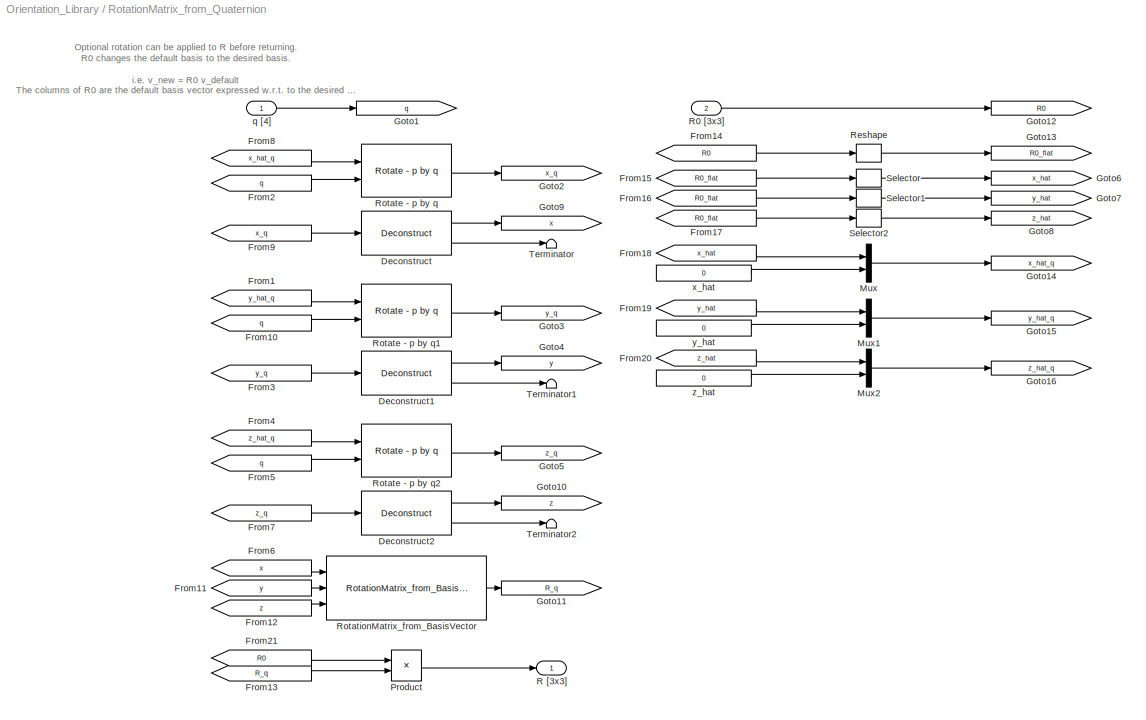
BLOCK [SubSystem] RotationMatrix_from_Quaternion
  FunctionWithSeparateData = off
  MaskHideContents = off
  MinAlgLoopOccurrences = off
  Opaque = off
  Ports = [2, 1]
  PropExecContextOutsideSubsystem = off
  RTWSystemCode = Auto
  RequestExecContextInheritance = off
  SID = 171
BLOCK [Reference] RotationMatrix_from_Quaternion/Deconstruct  REF=Orientation_Library/Deconstruct
  Ports = [1, 2]
  SID = 348
  SourceBlock = Orientation_Library/Deconstruct
  SourceType = SubSystem
BLOCK [Reference] RotationMatrix_from_Quaternion/Deconstruct1  REF=Orientation_Library/Deconstruct
  Ports = [1, 2]
  SID = 350
  SourceBlock = Orientation_Library/Deconstruct
  SourceType = SubSystem
BLOCK [Reference] RotationMatrix_from_Quaternion/Deconstruct2  REF=Orientation_Library/Deconstruct
  Ports = [1, 2]
  SID = 352
  SourceBlock = Orientation_Library/Deconstruct
  SourceType = SubSystem
BLOCK [From] RotationMatrix_from_Quaternion/From1
  GotoTag = y_hat_q
  SID = 176
BLOCK [From] RotationMatrix_from_Quaternion/From10
  GotoTag = q
  SID = 270
BLOCK [From] RotationMatrix_from_Quaternion/From11
  GotoTag = y
  SID = 278
BLOCK [From] RotationMatrix_from_Quaternion/From12
  GotoTag = z
  SID = 279
BLOCK [From] RotationMatrix_from_Quaternion/From13
  GotoTag = R_q
  SID = 284
BLOCK [From] RotationMatrix_from_Quaternion/From14
  GotoTag = R0
  SID = 384
BLOCK [From] RotationMatrix_from_Quaternion/From15
  GotoTag = R0_flat
  SID = 386
BLOCK [From] RotationMatrix_from_Quaternion/From16
  GotoTag = R0_flat
  SID = 389
BLOCK [From] RotationMatrix_from_Quaternion/From17
  GotoTag = R0_flat
  SID = 390
BLOCK [From] RotationMatrix_from_Quaternion/From18
  GotoTag = x_hat
  SID = 392
BLOCK [From] RotationMatrix_from_Quaternion/From19
  GotoTag = y_hat
  SID = 396
BLOCK [From] RotationMatrix_from_Quaternion/From2
  GotoTag = q
  SID = 177
BLOCK [From] RotationMatrix_from_Quaternion/From20
  GotoTag = z_hat
  SID = 399
BLOCK [From] RotationMatrix_from_Quaternion/From21
  GotoTag = R0
  SID = 400
BLOCK [From] RotationMatrix_from_Quaternion/From3
  GotoTag = y_q
  SID = 178
BLOCK [From] RotationMatrix_from_Quaternion/From4
  GotoTag = z_hat_q
  SID = 179
BLOCK [From] RotationMatrix_from_Quaternion/From5
  GotoTag = q
  SID = 180
BLOCK [From] RotationMatrix_from_Quaternion/From6
  GotoTag = x
  SID = 181
BLOCK [From] RotationMatrix_from_Quaternion/From7
  GotoTag = z_q
  SID = 182
BLOCK [From] RotationMatrix_from_Quaternion/From8
  GotoTag = x_hat_q
  SID = 199
BLOCK [From] RotationMatrix_from_Quaternion/From9
  GotoTag = x_q
  SID = 268
BLOCK [Goto] RotationMatrix_from_Quaternion/Goto1
  GotoTag = q
  SID = 183
BLOCK [Goto] RotationMatrix_from_Quaternion/Goto10
  GotoTag = z
  SID = 275
BLOCK [Goto] RotationMatrix_from_Quaternion/Goto11
  GotoTag = R_q
  SID = 280
BLOCK [Goto] RotationMatrix_from_Quaternion/Goto12
  GotoTag = R0
  SID = 381
BLOCK [Goto] RotationMatrix_from_Quaternion/Goto13
  GotoTag = R0_flat
  SID = 385
BLOCK [Goto] RotationMatrix_from_Quaternion/Goto14
  GotoTag = x_hat_q
  SID = 393
BLOCK [Goto] RotationMatrix_from_Quaternion/Goto15
  GotoTag = y_hat_q
  SID = 394
BLOCK [Goto] RotationMatrix_from_Quaternion/Goto16
  GotoTag = z_hat_q
  SID = 397
BLOCK [Goto] RotationMatrix_from_Quaternion/Goto2
  GotoTag = x_q
  SID = 184
BLOCK [Goto] RotationMatrix_from_Quaternion/Goto3
  GotoTag = y_q
  SID = 185
BLOCK [Goto] RotationMatrix_from_Quaternion/Goto4
  GotoTag = y
  SID = 186
BLOCK [Goto] RotationMatrix_from_Quaternion/Goto5
  GotoTag = z_q
  SID = 187
BLOCK [Goto] RotationMatrix_from_Quaternion/Goto6
  GotoTag = x_hat
  SID = 195
BLOCK [Goto] RotationMatrix_from_Quaternion/Goto7
  GotoTag = y_hat
  SID = 196
BLOCK [Goto] RotationMatrix_from_Quaternion/Goto8
  GotoTag = z_hat
  SID = 197
BLOCK [Goto] RotationMatrix_from_Quaternion/Goto9
  GotoTag = x
  SID = 267
BLOCK [Mux] RotationMatrix_from_Quaternion/Mux
  DisplayOption = bar
  Inputs = [3 1]
  Ports = [2, 1]
  SID = 391
BLOCK [Mux] RotationMatrix_from_Quaternion/Mux1
  DisplayOption = bar
  Inputs = [3 1]
  Ports = [2, 1]
  SID = 395
BLOCK [Mux] RotationMatrix_from_Quaternion/Mux2
  DisplayOption = bar
  Inputs = [3 1]
  Ports = [2, 1]
  SID = 398
BLOCK [Product] RotationMatrix_from_Quaternion/Product
  InputSameDT = off
  Multiplication = Matrix(*)
  OutDataTypeStr = Inherit: Inherit via internal rule
  Ports = [2, 1]
  SID = 282
  SaturateOnIntegerOverflow = off
BLOCK [Outport] RotationMatrix_from_Quaternion/R [3x3]
  IconDisplay = Port number
  SID = 191
BLOCK [Inport] RotationMatrix_from_Quaternion/R0 [3x3]
  IconDisplay = Port number
  Port = 2
  SID = 281
BLOCK [Reshape] RotationMatrix_from_Quaternion/Reshape
  Ports = [1, 1]
  SID = 382
BLOCK [Reference] RotationMatrix_from_Quaternion/Rotate - p by q  REF=Orientation_Library/Rotate - p by q
  Ports = [2, 1]
  SID = 347
  SourceBlock = Orientation_Library/Rotate - p by q
  SourceType = SubSystem
BLOCK [Reference] RotationMatrix_from_Quaternion/Rotate - p by q1  REF=Orientation_Library/Rotate - p by q
  Ports = [2, 1]
  SID = 349
  SourceBlock = Orientation_Library/Rotate - p by q
  SourceType = SubSystem
BLOCK [Reference] RotationMatrix_from_Quaternion/Rotate - p by q2  REF=Orientation_Library/Rotate - p by q
  Ports = [2, 1]
  SID = 351
  SourceBlock = Orientation_Library/Rotate - p by q
  SourceType = SubSystem
BLOCK [Reference] RotationMatrix_from_Quaternion/RotationMatrix_from_BasisVector  REF=Orientation_Library/RotationMatrix_from_BasisVector
  Ports = [3, 1]
  SID = 353
  SourceBlock = Orientation_Library/RotationMatrix_from_BasisVector
  SourceType = SubSystem
BLOCK [Selector] RotationMatrix_from_Quaternion/Selector
  Indices = [1,4,7]
  InputPortWidth = 9
  Ports = [1, 1]
  SID = 383
BLOCK [Selector] RotationMatrix_from_Quaternion/Selector1
  Indices = [2,5,8]
  InputPortWidth = 9
  Ports = [1, 1]
  SID = 387
BLOCK [Selector] RotationMatrix_from_Quaternion/Selector2
  Indices = [3,6,9]
  InputPortWidth = 9
  Ports = [1, 1]
  SID = 388
BLOCK [Terminator] RotationMatrix_from_Quaternion/Terminator
  SID = 266
BLOCK [Terminator] RotationMatrix_from_Quaternion/Terminator1
  SID = 272
BLOCK [Terminator] RotationMatrix_from_Quaternion/Terminator2
  SID = 276
BLOCK [Inport] RotationMatrix_from_Quaternion/q [4]
  IconDisplay = Port number
  SID = 172
BLOCK [Constant] RotationMatrix_from_Quaternion/x_hat
  SID = 192
  Value = 0
BLOCK [Constant] RotationMatrix_from_Quaternion/y_hat
  SID = 193
  Value = 0
BLOCK [Constant] RotationMatrix_from_Quaternion/z_hat
  SID = 194
  Value = 0
BLOCK [SubSystem] Skew Matrix
  FunctionWithSeparateData = off
  MaskHideContents = off
  MinAlgLoopOccurrences = off
  Opaque = off
  Ports = [1, 1]
  PropExecContextOutsideSubsystem = off
  RTWSystemCode = Auto
  RequestExecContextInheritance = off
  SID = 401
BLOCK [Demux] Skew Matrix/Demux2
  DisplayOption = bar
  Outputs = 3
  Ports = [1, 3]
  SID = 406
BLOCK [Constant] Skew Matrix/Diagonal
  SID = 411
  Value = 0
BLOCK [Constant] Skew Matrix/Diagonal1
  SID = 415
  Value = 0
BLOCK [Constant] Skew Matrix/Diagonal2
  SID = 420
  Value = 0
BLOCK [From] Skew Matrix/From1
  GotoTag = v3
  SID = 412
BLOCK [From] Skew Matrix/From2
  GotoTag = v2
  SID = 414
BLOCK [From] Skew Matrix/From3
  GotoTag = v3
  SID = 416
BLOCK [From] Skew Matrix/From4
  GotoTag = v1
  SID = 417
BLOCK [From] Skew Matrix/From5
  GotoTag = v2
  SID = 421
BLOCK [From] Skew Matrix/From6
  GotoTag = v1
  SID = 422
BLOCK [Gain] Skew Matrix/Gain
  Gain = -1
  OutDataTypeStr = Inherit: Inherit via internal rule
  ParamDataTypeStr = Inherit: Inherit via internal rule
  SID = 413
  SaturateOnIntegerOverflow = off
BLOCK [Gain] Skew Matrix/Gain1
  Gain = -1
  OutDataTypeStr = Inherit: Inherit via internal rule
  ParamDataTypeStr = Inherit: Inherit via internal rule
  SID = 418
  SaturateOnIntegerOverflow = off
BLOCK [Gain] Skew Matrix/Gain2
  Gain = -1
  OutDataTypeStr = Inherit: Inherit via internal rule
  ParamDataTypeStr = Inherit: Inherit via internal rule
  SID = 423
  SaturateOnIntegerOverflow = off
BLOCK [Goto] Skew Matrix/Goto1
  GotoTag = v1
  SID = 407
BLOCK [Goto] Skew Matrix/Goto2
  GotoTag = v2
  SID = 408
BLOCK [Goto] Skew Matrix/Goto3
  GotoTag = v3
  SID = 409
BLOCK [Mux] Skew Matrix/Mux
  DisplayOption = bar
  Inputs = 3
  Ports = [3, 1]
  SID = 410
BLOCK [Mux] Skew Matrix/Mux1
  DisplayOption = bar
  Inputs = 3
  Ports = [3, 1]
  SID = 419
BLOCK [Mux] Skew Matrix/Mux2
  DisplayOption = bar
  Inputs = 3
  Ports = [3, 1]
  SID = 424
BLOCK [Mux] Skew Matrix/Mux3
  DisplayOption = bar
  Inputs = [3 3 3]
  Ports = [3, 1]
  SID = 425
BLOCK [Reshape] Skew Matrix/Reshape
  OutputDimensionality = Customize
  OutputDimensions = [3,3]
  Ports = [1, 1]
  SID = 426
BLOCK [Outport] Skew Matrix/S(v) 3x3]
  IconDisplay = Port number
  SID = 403
BLOCK [Inport] Skew Matrix/v [3]
  IconDisplay = Port number
  SID = 402
BLOCK [SubSystem] Vector Decomposition
  FunctionWithSeparateData = off
  MaskHideContents = off
  MinAlgLoopOccurrences = off
  Opaque = off
  Ports = [2, 4]
  PropExecContextOutsideSubsystem = off
  RTWSystemCode = Auto
  RequestExecContextInheritance = off
  SID = 206
BLOCK [Outport] Vector Decomposition/Norm of Parallel
  IconDisplay = Port number
  Port = 2
  SID = 211
BLOCK [Outport] Vector Decomposition/Norm of Perpendicular
  IconDisplay = Port number
  Port = 4
  SID = 213
BLOCK [Outport] Vector Decomposition/Parallel [3]
  IconDisplay = Port number
  SID = 210
BLOCK [Outport] Vector Decomposition/Perpendicular [3]
  IconDisplay = Port number
  Port = 3
  SID = 212
BLOCK [Inport] Vector Decomposition/V [3]
  IconDisplay = Port number
  SID = 207
BLOCK [SubSystem] Vector Decomposition/Vector Decomposition
  ErrorFcn = Stateflow.Translate.translate
  FunctionWithSeparateData = off
  MaskHideContents = off
  MinAlgLoopOccurrences = off
  Opaque = off
  PermitHierarchicalResolution = ParametersOnly
  Ports = [2, 4]
  PropExecContextOutsideSubsystem = off
  RTWSystemCode = Auto
  RequestExecContextInheritance = off
  SFBlockType = MATLAB Function
  SID = 209
  TreatAsAtomicUnit = on
BLOCK [Demux] Vector Decomposition/Vector Decomposition/ Demux 
  Outputs = 1
  Ports = [1, 1]
  SID = 209::60
BLOCK [S-Function] Vector Decomposition/Vector Decomposition/ SFunction 
  EnableBusSupport = off
  FunctionName = sf_sfun
  PortCounts = [2 5]
  Ports = [2, 5]
  SID = 209::59
  Tag = Stateflow S-Function Orientation_Library 9
BLOCK [Terminator] Vector Decomposition/Vector Decomposition/ Terminator 
  SID = 209::61
BLOCK [Outport] Vector Decomposition/Vector Decomposition/Parallel
  IconDisplay = Port number
  SID = 209::38
BLOCK [Outport] Vector Decomposition/Vector Decomposition/Parallel_norm
  IconDisplay = Port number
  Port = 2
  SID = 209::49
BLOCK [Outport] Vector Decomposition/Vector Decomposition/Perpendicular
  IconDisplay = Port number
  Port = 3
  SID = 209::39
BLOCK [Outport] Vector Decomposition/Vector Decomposition/Perpendicular_norm
  IconDisplay = Port number
  Port = 4
  SID = 209::50
BLOCK [Inport] Vector Decomposition/Vector Decomposition/V
  IconDisplay = Port number
  SID = 209::37
BLOCK [Inport] Vector Decomposition/Vector Decomposition/n
  IconDisplay = Port number
  Port = 2
  SID = 209::40
BLOCK [Inport] Vector Decomposition/n [3]
  IconDisplay = Port number
  Port = 2
  SID = 208
ANNOTATION (root): Euler Angles and Rotation Matrix Arithmetics
ANNOTATION (root): Generic Vector Arithmetics
ANNOTATION (root): Quaternion Arithmetics
ANNOTATION (root): q = q1 i + q2 j + q3 k + q4
ANNOTATION RotationMatrix_from_Quaternion: Optional rotation can be applied to R before returning.\nR0 changes the default basis to the desired basis.\n\ni.e. v_new = R0 v_default\n\nThe columns of R0 are the default basis vector expressed w.r.t. to the desired basis.
ANNOTATION Skew Matrix: S(v) = [ 0 -v3 v2 ]\n [ v3 0 -v1 ]\n [ -v2 v1 0 ]
LINE Angle_with_Plane/From1:1 -> Angle_with_Plane/Vector Decomposition:1
LINE Angle_with_Plane/From2:1 -> Angle_with_Plane/Vector Decomposition:2
LINE Angle_with_Plane/From3:1 -> Angle_with_Plane/MATLAB Function:1
LINE Angle_with_Plane/From4:1 -> Angle_with_Plane/MATLAB Function:2
LINE Angle_with_Plane/MATLAB Function/ Demux :1 -> Angle_with_Plane/MATLAB Function/ Terminator :1
LINE Angle_with_Plane/MATLAB Function/ SFunction :1 -> Angle_with_Plane/MATLAB Function/ Demux :1
LINE Angle_with_Plane/MATLAB Function/ SFunction :2 -> Angle_with_Plane/MATLAB Function/theta:1
LINE Angle_with_Plane/MATLAB Function/vd:1 -> Angle_with_Plane/MATLAB Function/ SFunction :2
LINE Angle_with_Plane/MATLAB Function/vn:1 -> Angle_with_Plane/MATLAB Function/ SFunction :1
LINE Angle_with_Plane/MATLAB Function:1 -> Angle_with_Plane/Angle (rad):1
LINE Angle_with_Plane/Vector Decomposition:1 -> Angle_with_Plane/Goto3:1
LINE Angle_with_Plane/Vector Decomposition:2 -> Angle_with_Plane/Terminator5:1
LINE Angle_with_Plane/Vector Decomposition:3 -> Angle_with_Plane/Goto4:1
LINE Angle_with_Plane/Vector Decomposition:4 -> Angle_with_Plane/Terminator1:1
LINE Angle_with_Plane/u_normal [3]:1 -> Angle_with_Plane/Goto2:1
LINE Angle_with_Plane/v [3]:1 -> Angle_with_Plane/Goto1:1
LINE AngularRates_from_RotationMatrix/Compare\nTo Constant:1 -> AngularRates_from_RotationMatrix/Threshold:1
LINE AngularRates_from_RotationMatrix/Desired Switch Torque (Nm)1:1 -> AngularRates_from_RotationMatrix/Second-Order\nLow-Pass Filter:3
LINE AngularRates_from_RotationMatrix/Desired Switch Torque (Nm)2:1 -> AngularRates_from_RotationMatrix/Second-Order\nLow-Pass Filter:4
LINE AngularRates_from_RotationMatrix/Desired Switch Torque (Nm):1 -> AngularRates_from_RotationMatrix/Second-Order\nLow-Pass Filter:2
LINE AngularRates_from_RotationMatrix/From1:1 -> AngularRates_from_RotationMatrix/Product:1
LINE AngularRates_from_RotationMatrix/From2:1 -> AngularRates_from_RotationMatrix/Product:2
LINE AngularRates_from_RotationMatrix/From3:1 -> AngularRates_from_RotationMatrix/MATLAB Function1:1
LINE AngularRates_from_RotationMatrix/From4:1 -> AngularRates_from_RotationMatrix/Compare\nTo Constant:1
LINE AngularRates_from_RotationMatrix/MATLAB Function/ Demux :1 -> AngularRates_from_RotationMatrix/MATLAB Function/ Terminator :1
LINE AngularRates_from_RotationMatrix/MATLAB Function/ SFunction :1 -> AngularRates_from_RotationMatrix/MATLAB Function/ Demux :1
LINE AngularRates_from_RotationMatrix/MATLAB Function/ SFunction :2 -> AngularRates_from_RotationMatrix/MATLAB Function/y:1
LINE AngularRates_from_RotationMatrix/MATLAB Function/u:1 -> AngularRates_from_RotationMatrix/MATLAB Function/ SFunction :1
LINE AngularRates_from_RotationMatrix/MATLAB Function1/ Demux :1 -> AngularRates_from_RotationMatrix/MATLAB Function1/ Terminator :1
LINE AngularRates_from_RotationMatrix/MATLAB Function1/ SFunction :1 -> AngularRates_from_RotationMatrix/MATLAB Function1/ Demux :1
LINE AngularRates_from_RotationMatrix/MATLAB Function1/ SFunction :2 -> AngularRates_from_RotationMatrix/MATLAB Function1/wx:1
LINE AngularRates_from_RotationMatrix/MATLAB Function1/ SFunction :3 -> AngularRates_from_RotationMatrix/MATLAB Function1/wy:1
LINE AngularRates_from_RotationMatrix/MATLAB Function1/ SFunction :4 -> AngularRates_from_RotationMatrix/MATLAB Function1/wz:1
LINE AngularRates_from_RotationMatrix/MATLAB Function1/ SFunction :5 -> AngularRates_from_RotationMatrix/MATLAB Function1/err:1
LINE AngularRates_from_RotationMatrix/MATLAB Function1/W:1 -> AngularRates_from_RotationMatrix/MATLAB Function1/ SFunction :1
LINE AngularRates_from_RotationMatrix/MATLAB Function1:1 -> AngularRates_from_RotationMatrix/Mux:1
LINE AngularRates_from_RotationMatrix/MATLAB Function1:2 -> AngularRates_from_RotationMatrix/Mux:2
LINE AngularRates_from_RotationMatrix/MATLAB Function1:3 -> AngularRates_from_RotationMatrix/Mux:3
LINE AngularRates_from_RotationMatrix/MATLAB Function1:4 -> AngularRates_from_RotationMatrix/Goto4:1
LINE AngularRates_from_RotationMatrix/MATLAB Function:1 -> AngularRates_from_RotationMatrix/Goto1:1
LINE AngularRates_from_RotationMatrix/Mux:1 -> AngularRates_from_RotationMatrix/omega (rad//s) [3]:1
NET AngularRates_from_RotationMatrix/Product:1 -> AngularRates_from_RotationMatrix/Goto3:1, AngularRates_from_RotationMatrix/W (rad//s) [3x3]:1
NET AngularRates_from_RotationMatrix/R [3x3]:1 -> AngularRates_from_RotationMatrix/MATLAB Function:1, AngularRates_from_RotationMatrix/Second-Order\nLow-Pass Filter:1
LINE AngularRates_from_RotationMatrix/Second-Order\nLow-Pass Filter:1 -> AngularRates_from_RotationMatrix/Terminator5:1
NET AngularRates_from_RotationMatrix/Second-Order\nLow-Pass Filter:2 -> AngularRates_from_RotationMatrix/Goto2:1, AngularRates_from_RotationMatrix/R_dot [3x3]:1
LINE AngularRates_from_RotationMatrix/Threshold:1 -> AngularRates_from_RotationMatrix/Rate Invalid:1
LINE AngularRates_from_RotationMatrix/Threshold:2 -> AngularRates_from_RotationMatrix/Terminator1:1
LINE BasisVector_from_RotationMatrix/BasisVector_from_RotationMatrix/ Demux :1 -> BasisVector_from_RotationMatrix/BasisVector_from_RotationMatrix/ Terminator :1
LINE BasisVector_from_RotationMatrix/BasisVector_from_RotationMatrix/ SFunction :1 -> BasisVector_from_RotationMatrix/BasisVector_from_RotationMatrix/ Demux :1
LINE BasisVector_from_RotationMatrix/BasisVector_from_RotationMatrix/ SFunction :2 -> BasisVector_from_RotationMatrix/BasisVector_from_RotationMatrix/x_hat:1
LINE BasisVector_from_RotationMatrix/BasisVector_from_RotationMatrix/ SFunction :3 -> BasisVector_from_RotationMatrix/BasisVector_from_RotationMatrix/y_hat:1
LINE BasisVector_from_RotationMatrix/BasisVector_from_RotationMatrix/ SFunction :4 -> BasisVector_from_RotationMatrix/BasisVector_from_RotationMatrix/z_hat:1
LINE BasisVector_from_RotationMatrix/BasisVector_from_RotationMatrix/R:1 -> BasisVector_from_RotationMatrix/BasisVector_from_RotationMatrix/ SFunction :1
LINE BasisVector_from_RotationMatrix/BasisVector_from_RotationMatrix:1 -> BasisVector_from_RotationMatrix/x_hat [3]:1
LINE BasisVector_from_RotationMatrix/BasisVector_from_RotationMatrix:2 -> BasisVector_from_RotationMatrix/y_hat [3]:1
LINE BasisVector_from_RotationMatrix/BasisVector_from_RotationMatrix:3 -> BasisVector_from_RotationMatrix/z_hat [3]:1
LINE BasisVector_from_RotationMatrix/R [3x3]:1 -> BasisVector_from_RotationMatrix/BasisVector_from_RotationMatrix:1
LINE Conjugate/Demux:1 -> Conjugate/Gain:1
LINE Conjugate/Demux:2 -> Conjugate/Mux:2
LINE Conjugate/Gain:1 -> Conjugate/Mux:1
LINE Conjugate/Mux:1 -> Conjugate/q_star [4]:1
LINE Conjugate/q [4]:1 -> Conjugate/Demux:1
LINE Construct/Mux:1 -> Construct/q [4]:1
LINE Construct/q_scalar:1 -> Construct/Mux:2
LINE Construct/q_vector [3]:1 -> Construct/Mux:1
LINE ConstructT/MATLAB Function3/ Demux :1 -> ConstructT/MATLAB Function3/ Terminator :1
LINE ConstructT/MATLAB Function3/ SFunction :1 -> ConstructT/MATLAB Function3/ Demux :1
LINE ConstructT/MATLAB Function3/ SFunction :2 -> ConstructT/MATLAB Function3/T:1
LINE ConstructT/MATLAB Function3/P:1 -> ConstructT/MATLAB Function3/ SFunction :2
LINE ConstructT/MATLAB Function3/R:1 -> ConstructT/MATLAB Function3/ SFunction :1
LINE ConstructT/MATLAB Function3:1 -> ConstructT/T [4x4]:1
LINE ConstructT/P (m) [3]:1 -> ConstructT/MATLAB Function3:2
LINE ConstructT/R [3x3]:1 -> ConstructT/MATLAB Function3:1
LINE Cross Product/A [3]:1 -> Cross Product/Goto1:1
LINE Cross Product/B [3]:1 -> Cross Product/Goto2:1
LINE Cross Product/Cross Product/ Demux :1 -> Cross Product/Cross Product/ Terminator :1
LINE Cross Product/Cross Product/ SFunction :1 -> Cross Product/Cross Product/ Demux :1
LINE Cross Product/Cross Product/ SFunction :2 -> Cross Product/Cross Product/y:1
LINE Cross Product/Cross Product/a:1 -> Cross Product/Cross Product/ SFunction :1
LINE Cross Product/Cross Product/b:1 -> Cross Product/Cross Product/ SFunction :2
LINE Cross Product/Cross Product:1 -> Cross Product/Terminator:1
LINE Cross Product/From1:1 -> Cross Product/Skew Matrix:1
LINE Cross Product/From2:1 -> Cross Product/Product:1
LINE Cross Product/From3:1 -> Cross Product/Product:2
LINE Cross Product/From4:1 -> Cross Product/Cross Product:1
LINE Cross Product/From5:1 -> Cross Product/Cross Product:2
LINE Cross Product/Product:1 -> Cross Product/A x B [3]:1
LINE Cross Product/Skew Matrix:1 -> Cross Product/Goto3:1
LINE DecomposeT/MATLAB Function1/ Demux :1 -> DecomposeT/MATLAB Function1/ Terminator :1
LINE DecomposeT/MATLAB Function1/ SFunction :1 -> DecomposeT/MATLAB Function1/ Demux :1
LINE DecomposeT/MATLAB Function1/ SFunction :2 -> DecomposeT/MATLAB Function1/R:1
LINE DecomposeT/MATLAB Function1/ SFunction :3 -> DecomposeT/MATLAB Function1/P:1
LINE DecomposeT/MATLAB Function1/T:1 -> DecomposeT/MATLAB Function1/ SFunction :1
LINE DecomposeT/MATLAB Function1:1 -> DecomposeT/R [3x3]:1
LINE DecomposeT/MATLAB Function1:2 -> DecomposeT/P (m) [3]:1
LINE DecomposeT/T [4x4]:1 -> DecomposeT/MATLAB Function1:1
LINE Deconstruct/Demux:1 -> Deconstruct/q_vector [3]:1
LINE Deconstruct/Demux:2 -> Deconstruct/q_scalar:1
LINE Deconstruct/q [4]:1 -> Deconstruct/Demux:1
LINE EulerAngles_XYZ_from_RotationMatrix/EulerAngles_xyz_from_RotationMatrix/ Demux :1 -> EulerAngles_XYZ_from_RotationMatrix/EulerAngles_xyz_from_RotationMatrix/ Terminator :1
LINE EulerAngles_XYZ_from_RotationMatrix/EulerAngles_xyz_from_RotationMatrix/ SFunction :1 -> EulerAngles_XYZ_from_RotationMatrix/EulerAngles_xyz_from_RotationMatrix/ Demux :1
LINE EulerAngles_XYZ_from_RotationMatrix/EulerAngles_xyz_from_RotationMatrix/ SFunction :2 -> EulerAngles_XYZ_from_RotationMatrix/EulerAngles_xyz_from_RotationMatrix/Angles:1
LINE EulerAngles_XYZ_from_RotationMatrix/EulerAngles_xyz_from_RotationMatrix/ SFunction :3 -> EulerAngles_XYZ_from_RotationMatrix/EulerAngles_xyz_from_RotationMatrix/isSingular:1
LINE EulerAngles_XYZ_from_RotationMatrix/EulerAngles_xyz_from_RotationMatrix/R:1 -> EulerAngles_XYZ_from_RotationMatrix/EulerAngles_xyz_from_RotationMatrix/ SFunction :1
LINE EulerAngles_XYZ_from_RotationMatrix/EulerAngles_xyz_from_RotationMatrix/auxAngle:1 -> EulerAngles_XYZ_from_RotationMatrix/EulerAngles_xyz_from_RotationMatrix/ SFunction :2
LINE EulerAngles_XYZ_from_RotationMatrix/EulerAngles_xyz_from_RotationMatrix/auxSelect:1 -> EulerAngles_XYZ_from_RotationMatrix/EulerAngles_xyz_from_RotationMatrix/ SFunction :3
LINE EulerAngles_XYZ_from_RotationMatrix/EulerAngles_xyz_from_RotationMatrix:1 -> EulerAngles_XYZ_from_RotationMatrix/Angles (rad) [3]:1
LINE EulerAngles_XYZ_from_RotationMatrix/EulerAngles_xyz_from_RotationMatrix:2 -> EulerAngles_XYZ_from_RotationMatrix/isSingular:1
LINE EulerAngles_XYZ_from_RotationMatrix/R [3x3]:1 -> EulerAngles_XYZ_from_RotationMatrix/EulerAngles_xyz_from_RotationMatrix:1
LINE EulerAngles_XYZ_from_RotationMatrix/auxAngle (rad):1 -> EulerAngles_XYZ_from_RotationMatrix/EulerAngles_xyz_from_RotationMatrix:2
LINE EulerAngles_XYZ_from_RotationMatrix/auxSelect:1 -> EulerAngles_XYZ_from_RotationMatrix/EulerAngles_xyz_from_RotationMatrix:3
LINE EulerAngles_ZYX_from_RotationMatrix/EulerAngles_zyx_from_RotationMatrix/ Demux :1 -> EulerAngles_ZYX_from_RotationMatrix/EulerAngles_zyx_from_RotationMatrix/ Terminator :1
LINE EulerAngles_ZYX_from_RotationMatrix/EulerAngles_zyx_from_RotationMatrix/ SFunction :1 -> EulerAngles_ZYX_from_RotationMatrix/EulerAngles_zyx_from_RotationMatrix/ Demux :1
LINE EulerAngles_ZYX_from_RotationMatrix/EulerAngles_zyx_from_RotationMatrix/ SFunction :2 -> EulerAngles_ZYX_from_RotationMatrix/EulerAngles_zyx_from_RotationMatrix/Angles:1
LINE EulerAngles_ZYX_from_RotationMatrix/EulerAngles_zyx_from_RotationMatrix/ SFunction :3 -> EulerAngles_ZYX_from_RotationMatrix/EulerAngles_zyx_from_RotationMatrix/isSingular:1
LINE EulerAngles_ZYX_from_RotationMatrix/EulerAngles_zyx_from_RotationMatrix/R:1 -> EulerAngles_ZYX_from_RotationMatrix/EulerAngles_zyx_from_RotationMatrix/ SFunction :1
LINE EulerAngles_ZYX_from_RotationMatrix/EulerAngles_zyx_from_RotationMatrix/auxAngle:1 -> EulerAngles_ZYX_from_RotationMatrix/EulerAngles_zyx_from_RotationMatrix/ SFunction :2
LINE EulerAngles_ZYX_from_RotationMatrix/EulerAngles_zyx_from_RotationMatrix/auxSelect:1 -> EulerAngles_ZYX_from_RotationMatrix/EulerAngles_zyx_from_RotationMatrix/ SFunction :3
LINE EulerAngles_ZYX_from_RotationMatrix/EulerAngles_zyx_from_RotationMatrix:1 -> EulerAngles_ZYX_from_RotationMatrix/Angles (rad) [3]:1
LINE EulerAngles_ZYX_from_RotationMatrix/EulerAngles_zyx_from_RotationMatrix:2 -> EulerAngles_ZYX_from_RotationMatrix/isSingular:1
LINE EulerAngles_ZYX_from_RotationMatrix/R [3x3]:1 -> EulerAngles_ZYX_from_RotationMatrix/EulerAngles_zyx_from_RotationMatrix:1
LINE EulerAngles_ZYX_from_RotationMatrix/auxAngle (rad):1 -> EulerAngles_ZYX_from_RotationMatrix/EulerAngles_zyx_from_RotationMatrix:2
LINE EulerAngles_ZYX_from_RotationMatrix/auxSelect:1 -> EulerAngles_ZYX_from_RotationMatrix/EulerAngles_zyx_from_RotationMatrix:3
LINE Multiply/Construct:1 -> Multiply/pq [4]:1
LINE Multiply/Cross Product:1 -> Multiply/Goto5:1
LINE Multiply/Deconstruct1:1 -> Multiply/Goto2:1
LINE Multiply/Deconstruct1:2 -> Multiply/Goto3:1
LINE Multiply/Deconstruct:1 -> Multiply/Goto:1
LINE Multiply/Deconstruct:2 -> Multiply/Goto1:1
LINE Multiply/Dot Product:1 -> Multiply/Goto4:1
LINE Multiply/From10:1 -> Multiply/Sum:1
LINE Multiply/From11:1 -> Multiply/Sum:2
LINE Multiply/From12:1 -> Multiply/Sum1:1
LINE Multiply/From13:1 -> Multiply/Sum1:2
LINE Multiply/From14:1 -> Multiply/Sum1:3
LINE Multiply/From15:1 -> Multiply/Construct:2
LINE Multiply/From16:1 -> Multiply/Construct:1
LINE Multiply/From1:1 -> Multiply/Dot Product:2
LINE Multiply/From2:1 -> Multiply/Cross Product:1
LINE Multiply/From3:1 -> Multiply/Cross Product:2
LINE Multiply/From4:1 -> Multiply/Product:1
LINE Multiply/From5:1 -> Multiply/Product:2
LINE Multiply/From6:1 -> Multiply/Product1:1
LINE Multiply/From7:1 -> Multiply/Product1:2
LINE Multiply/From8:1 -> Multiply/Product2:1
LINE Multiply/From9:1 -> Multiply/Product2:2
LINE Multiply/From:1 -> Multiply/Dot Product:1
LINE Multiply/Product1:1 -> Multiply/Goto7:1
LINE Multiply/Product2:1 -> Multiply/Goto8:1
LINE Multiply/Product:1 -> Multiply/Goto6:1
LINE Multiply/Sum1:1 -> Multiply/Goto10:1
LINE Multiply/Sum:1 -> Multiply/Goto9:1
LINE Multiply/p [4]:1 -> Multiply/Deconstruct:1
LINE Multiply/q [4]:1 -> Multiply/Deconstruct1:1
LINE Norm/Conjugate:1 -> Norm/Goto:1
LINE Norm/Demux:1 -> Norm/Terminator:1
LINE Norm/Demux:2 -> Norm/Goto3:1
LINE Norm/From1:1 -> Norm/Conjugate:1
LINE Norm/From2:1 -> Norm/Multiply:1
LINE Norm/From3:1 -> Norm/Multiply:2
LINE Norm/From4:1 -> Norm/Sqrt:1
LINE Norm/From5:1 -> Norm/Demux:1
LINE Norm/Multiply:1 -> Norm/Goto2:1
LINE Norm/Sqrt:1 -> Norm/q_norm:1
LINE Norm/q [4]:1 -> Norm/Goto1:1
LINE Normalize/Divide:1 -> Normalize/q_hat [4]:1
LINE Normalize/Dummy:1 -> Normalize/Switch:3
LINE Normalize/From1:1 -> Normalize/Divide:1
LINE Normalize/From2:1 -> Normalize/Norm:1
LINE Normalize/From3:1 -> Normalize/Divide:2
NET Normalize/From4:1 -> Normalize/Switch:1, Normalize/Switch:2
LINE Normalize/From5:1 -> Normalize/q_norm:1
LINE Normalize/Norm:1 -> Normalize/Goto2:1
LINE Normalize/Switch:1 -> Normalize/Goto4:1
LINE Normalize/q [4]:1 -> Normalize/Goto1:1
LINE ProjectionAngles_from_RotationMatrix/Angle_with_Plane\n(About X)\n(Betweeb Local Y and Global Z) :1 -> ProjectionAngles_from_RotationMatrix/Goto4:1
LINE ProjectionAngles_from_RotationMatrix/Angle_with_Plane\n(About Y)\n(Between Local Z and Global X):1 -> ProjectionAngles_from_RotationMatrix/Goto5:1
LINE ProjectionAngles_from_RotationMatrix/Angle_with_Plane\n(About Z)\n(Between Local X and Global Y):1 -> ProjectionAngles_from_RotationMatrix/Goto6:1
LINE ProjectionAngles_from_RotationMatrix/BasisVector_from_RotationMatrix:1 -> ProjectionAngles_from_RotationMatrix/Goto1:1
LINE ProjectionAngles_from_RotationMatrix/BasisVector_from_RotationMatrix:2 -> ProjectionAngles_from_RotationMatrix/Goto2:1
LINE ProjectionAngles_from_RotationMatrix/BasisVector_from_RotationMatrix:3 -> ProjectionAngles_from_RotationMatrix/Goto3:1
LINE ProjectionAngles_from_RotationMatrix/From1:1 -> ProjectionAngles_from_RotationMatrix/Angle_with_Plane\n(About X)\n(Betweeb Local Y and Global Z) :1
LINE ProjectionAngles_from_RotationMatrix/From2:1 -> ProjectionAngles_from_RotationMatrix/Angle_with_Plane\n(About Y)\n(Between Local Z and Global X):1
LINE ProjectionAngles_from_RotationMatrix/From3:1 -> ProjectionAngles_from_RotationMatrix/Angle_with_Plane\n(About Z)\n(Between Local X and Global Y):1
LINE ProjectionAngles_from_RotationMatrix/From4:1 -> ProjectionAngles_from_RotationMatrix/Mux:1
LINE ProjectionAngles_from_RotationMatrix/From5:1 -> ProjectionAngles_from_RotationMatrix/Mux:2
LINE ProjectionAngles_from_RotationMatrix/From6:1 -> ProjectionAngles_from_RotationMatrix/Mux:3
LINE ProjectionAngles_from_RotationMatrix/Global X1:1 -> ProjectionAngles_from_RotationMatrix/Angle_with_Plane\n(About Z)\n(Between Local X and Global Y):2
LINE ProjectionAngles_from_RotationMatrix/Global X:1 -> ProjectionAngles_from_RotationMatrix/Angle_with_Plane\n(About Y)\n(Between Local Z and Global X):2
LINE ProjectionAngles_from_RotationMatrix/Global Z:1 -> ProjectionAngles_from_RotationMatrix/Angle_with_Plane\n(About X)\n(Betweeb Local Y and Global Z) :2
LINE ProjectionAngles_from_RotationMatrix/Mux:1 -> ProjectionAngles_from_RotationMatrix/Angles (rad) [3]:1
LINE ProjectionAngles_from_RotationMatrix/R [3x3]:1 -> ProjectionAngles_from_RotationMatrix/BasisVector_from_RotationMatrix:1
LINE Reciprocal Inverse/Conjugate:1 -> Reciprocal Inverse/Goto2:1
LINE Reciprocal Inverse/Divide:1 -> Reciprocal Inverse/q_inv [4]:1
LINE Reciprocal Inverse/Dummy:1 -> Reciprocal Inverse/Switch:3
LINE Reciprocal Inverse/From1:1 -> Reciprocal Inverse/Norm:1
LINE Reciprocal Inverse/From2:1 -> Reciprocal Inverse/Conjugate:1
NET Reciprocal Inverse/From3:1 -> Reciprocal Inverse/Switch:1, Reciprocal Inverse/Switch:2
LINE Reciprocal Inverse/From4:1 -> Reciprocal Inverse/Product:1
LINE Reciprocal Inverse/From5:1 -> Reciprocal Inverse/Product:2
LINE Reciprocal Inverse/From6:1 -> Reciprocal Inverse/Divide:2
LINE Reciprocal Inverse/From7:1 -> Reciprocal Inverse/Divide:1
LINE Reciprocal Inverse/Norm:1 -> Reciprocal Inverse/Goto3:1
LINE Reciprocal Inverse/Product:1 -> Reciprocal Inverse/Goto5:1
LINE Reciprocal Inverse/Switch:1 -> Reciprocal Inverse/Goto4:1
LINE Reciprocal Inverse/q [4]:1 -> Reciprocal Inverse/Goto1:1
LINE Rotate - p by q/From1:1 -> Rotate - p by q/Reciprocal Inverse:1
LINE Rotate - p by q/From2:1 -> Rotate - p by q/Multiply:1
LINE Rotate - p by q/From3:1 -> Rotate - p by q/Multiply:2
LINE Rotate - p by q/From4:1 -> Rotate - p by q/Multiply1:1
LINE Rotate - p by q/From5:1 -> Rotate - p by q/Multiply1:2
LINE Rotate - p by q/Multiply1:1 -> Rotate - p by q/p_rotated [4]:1
LINE Rotate - p by q/Multiply:1 -> Rotate - p by q/Goto2:1
LINE Rotate - p by q/Reciprocal Inverse:1 -> Rotate - p by q/Goto:1
LINE Rotate - p by q/p [4]:1 -> Rotate - p by q/Goto1:1
LINE Rotate - p by q/q [4]:1 -> Rotate - p by q/Goto3:1
LINE Rotate - v by q/Construct:1 -> Rotate - v by q/Goto4:1
LINE Rotate - v by q/Deconstruct:1 -> Rotate - v by q/v_rotated [3]:1
LINE Rotate - v by q/Deconstruct:2 -> Rotate - v by q/Terminator:1
LINE Rotate - v by q/Dummy:1 -> Rotate - v by q/Construct:2
LINE Rotate - v by q/From1:1 -> Rotate - v by q/Rotate - p by q:1
LINE Rotate - v by q/From2:1 -> Rotate - v by q/Rotate - p by q:2
LINE Rotate - v by q/From3:1 -> Rotate - v by q/Deconstruct:1
LINE Rotate - v by q/From6:1 -> Rotate - v by q/Construct:1
NET Rotate - v by q/Rotate - p by q:1 -> Rotate - v by q/Goto2:1, Rotate - v by q/p [4]:1
LINE Rotate - v by q/q [4]:1 -> Rotate - v by q/Goto3:1
LINE Rotate - v by q/v [3]:1 -> Rotate - v by q/Goto1:1
LINE RotationMatrix_from_BasisVector/RotationMatrix_from_BasisVector/ Demux :1 -> RotationMatrix_from_BasisVector/RotationMatrix_from_BasisVector/ Terminator :1
LINE RotationMatrix_from_BasisVector/RotationMatrix_from_BasisVector/ SFunction :1 -> RotationMatrix_from_BasisVector/RotationMatrix_from_BasisVector/ Demux :1
LINE RotationMatrix_from_BasisVector/RotationMatrix_from_BasisVector/ SFunction :2 -> RotationMatrix_from_BasisVector/RotationMatrix_from_BasisVector/R:1
LINE RotationMatrix_from_BasisVector/RotationMatrix_from_BasisVector/x_hat:1 -> RotationMatrix_from_BasisVector/RotationMatrix_from_BasisVector/ SFunction :1
LINE RotationMatrix_from_BasisVector/RotationMatrix_from_BasisVector/y_hat:1 -> RotationMatrix_from_BasisVector/RotationMatrix_from_BasisVector/ SFunction :2
LINE RotationMatrix_from_BasisVector/RotationMatrix_from_BasisVector/z_hat:1 -> RotationMatrix_from_BasisVector/RotationMatrix_from_BasisVector/ SFunction :3
LINE RotationMatrix_from_BasisVector/RotationMatrix_from_BasisVector:1 -> RotationMatrix_from_BasisVector/R [3x3]:1
LINE RotationMatrix_from_BasisVector/x_hat [3]:1 -> RotationMatrix_from_BasisVector/RotationMatrix_from_BasisVector:1
LINE RotationMatrix_from_BasisVector/y_hat [3]:1 -> RotationMatrix_from_BasisVector/RotationMatrix_from_BasisVector:2
LINE RotationMatrix_from_BasisVector/z_hat [3]:1 -> RotationMatrix_from_BasisVector/RotationMatrix_from_BasisVector:3
LINE RotationMatrix_from_EulerAngles_XYZ/RotationMatrix_from_EulerAngles_xyz/ Demux :1 -> RotationMatrix_from_EulerAngles_XYZ/RotationMatrix_from_EulerAngles_xyz/ Terminator :1
LINE RotationMatrix_from_EulerAngles_XYZ/RotationMatrix_from_EulerAngles_xyz/ SFunction :1 -> RotationMatrix_from_EulerAngles_XYZ/RotationMatrix_from_EulerAngles_xyz/ Demux :1
LINE RotationMatrix_from_EulerAngles_XYZ/RotationMatrix_from_EulerAngles_xyz/ SFunction :2 -> RotationMatrix_from_EulerAngles_XYZ/RotationMatrix_from_EulerAngles_xyz/R:1
LINE RotationMatrix_from_EulerAngles_XYZ/RotationMatrix_from_EulerAngles_xyz/pitch:1 -> RotationMatrix_from_EulerAngles_XYZ/RotationMatrix_from_EulerAngles_xyz/ SFunction :2
LINE RotationMatrix_from_EulerAngles_XYZ/RotationMatrix_from_EulerAngles_xyz/roll:1 -> RotationMatrix_from_EulerAngles_XYZ/RotationMatrix_from_EulerAngles_xyz/ SFunction :1
LINE RotationMatrix_from_EulerAngles_XYZ/RotationMatrix_from_EulerAngles_xyz/yaw:1 -> RotationMatrix_from_EulerAngles_XYZ/RotationMatrix_from_EulerAngles_xyz/ SFunction :3
LINE RotationMatrix_from_EulerAngles_XYZ/RotationMatrix_from_EulerAngles_xyz:1 -> RotationMatrix_from_EulerAngles_XYZ/R_xyz [3x3]:1
LINE RotationMatrix_from_EulerAngles_XYZ/pitch about y (rad):1 -> RotationMatrix_from_EulerAngles_XYZ/RotationMatrix_from_EulerAngles_xyz:2
LINE RotationMatrix_from_EulerAngles_XYZ/roll about x (rad):1 -> RotationMatrix_from_EulerAngles_XYZ/RotationMatrix_from_EulerAngles_xyz:1
LINE RotationMatrix_from_EulerAngles_XYZ/yaw about z (rad):1 -> RotationMatrix_from_EulerAngles_XYZ/RotationMatrix_from_EulerAngles_xyz:3
LINE RotationMatrix_from_EulerAngles_YZX/RotationMatrix_from_EulerAngles_yzx/ Demux :1 -> RotationMatrix_from_EulerAngles_YZX/RotationMatrix_from_EulerAngles_yzx/ Terminator :1
LINE RotationMatrix_from_EulerAngles_YZX/RotationMatrix_from_EulerAngles_yzx/ SFunction :1 -> RotationMatrix_from_EulerAngles_YZX/RotationMatrix_from_EulerAngles_yzx/ Demux :1
LINE RotationMatrix_from_EulerAngles_YZX/RotationMatrix_from_EulerAngles_yzx/ SFunction :2 -> RotationMatrix_from_EulerAngles_YZX/RotationMatrix_from_EulerAngles_yzx/R:1
LINE RotationMatrix_from_EulerAngles_YZX/RotationMatrix_from_EulerAngles_yzx/pitch:1 -> RotationMatrix_from_EulerAngles_YZX/RotationMatrix_from_EulerAngles_yzx/ SFunction :2
LINE RotationMatrix_from_EulerAngles_YZX/RotationMatrix_from_EulerAngles_yzx/roll:1 -> RotationMatrix_from_EulerAngles_YZX/RotationMatrix_from_EulerAngles_yzx/ SFunction :1
LINE RotationMatrix_from_EulerAngles_YZX/RotationMatrix_from_EulerAngles_yzx/yaw:1 -> RotationMatrix_from_EulerAngles_YZX/RotationMatrix_from_EulerAngles_yzx/ SFunction :3
LINE RotationMatrix_from_EulerAngles_YZX/RotationMatrix_from_EulerAngles_yzx:1 -> RotationMatrix_from_EulerAngles_YZX/R_yzx [3x3]:1
LINE RotationMatrix_from_EulerAngles_YZX/pitch about y (rad):1 -> RotationMatrix_from_EulerAngles_YZX/RotationMatrix_from_EulerAngles_yzx:2
LINE RotationMatrix_from_EulerAngles_YZX/roll about x (rad):1 -> RotationMatrix_from_EulerAngles_YZX/RotationMatrix_from_EulerAngles_yzx:1
LINE RotationMatrix_from_EulerAngles_YZX/yaw about z (rad):1 -> RotationMatrix_from_EulerAngles_YZX/RotationMatrix_from_EulerAngles_yzx:3
LINE RotationMatrix_from_EulerAngles_ZYX/RotationMatrix_from_EulerAngles_zyx/ Demux :1 -> RotationMatrix_from_EulerAngles_ZYX/RotationMatrix_from_EulerAngles_zyx/ Terminator :1
LINE RotationMatrix_from_EulerAngles_ZYX/RotationMatrix_from_EulerAngles_zyx/ SFunction :1 -> RotationMatrix_from_EulerAngles_ZYX/RotationMatrix_from_EulerAngles_zyx/ Demux :1
LINE RotationMatrix_from_EulerAngles_ZYX/RotationMatrix_from_EulerAngles_zyx/ SFunction :2 -> RotationMatrix_from_EulerAngles_ZYX/RotationMatrix_from_EulerAngles_zyx/R:1
LINE RotationMatrix_from_EulerAngles_ZYX/RotationMatrix_from_EulerAngles_zyx/pitch:1 -> RotationMatrix_from_EulerAngles_ZYX/RotationMatrix_from_EulerAngles_zyx/ SFunction :2
LINE RotationMatrix_from_EulerAngles_ZYX/RotationMatrix_from_EulerAngles_zyx/roll:1 -> RotationMatrix_from_EulerAngles_ZYX/RotationMatrix_from_EulerAngles_zyx/ SFunction :1
LINE RotationMatrix_from_EulerAngles_ZYX/RotationMatrix_from_EulerAngles_zyx/yaw:1 -> RotationMatrix_from_EulerAngles_ZYX/RotationMatrix_from_EulerAngles_zyx/ SFunction :3
LINE RotationMatrix_from_EulerAngles_ZYX/RotationMatrix_from_EulerAngles_zyx:1 -> RotationMatrix_from_EulerAngles_ZYX/R_zyx [3x3]:1
LINE RotationMatrix_from_EulerAngles_ZYX/pitch about y (rad):1 -> RotationMatrix_from_EulerAngles_ZYX/RotationMatrix_from_EulerAngles_zyx:2
LINE RotationMatrix_from_EulerAngles_ZYX/roll about x (rad):1 -> RotationMatrix_from_EulerAngles_ZYX/RotationMatrix_from_EulerAngles_zyx:1
LINE RotationMatrix_from_EulerAngles_ZYX/yaw about z (rad):1 -> RotationMatrix_from_EulerAngles_ZYX/RotationMatrix_from_EulerAngles_zyx:3
LINE RotationMatrix_from_Quaternion/Deconstruct1:1 -> RotationMatrix_from_Quaternion/Goto4:1
LINE RotationMatrix_from_Quaternion/Deconstruct1:2 -> RotationMatrix_from_Quaternion/Terminator1:1
LINE RotationMatrix_from_Quaternion/Deconstruct2:1 -> RotationMatrix_from_Quaternion/Goto10:1
LINE RotationMatrix_from_Quaternion/Deconstruct2:2 -> RotationMatrix_from_Quaternion/Terminator2:1
LINE RotationMatrix_from_Quaternion/Deconstruct:1 -> RotationMatrix_from_Quaternion/Goto9:1
LINE RotationMatrix_from_Quaternion/Deconstruct:2 -> RotationMatrix_from_Quaternion/Terminator:1
LINE RotationMatrix_from_Quaternion/From10:1 -> RotationMatrix_from_Quaternion/Rotate - p by q1:2
LINE RotationMatrix_from_Quaternion/From11:1 -> RotationMatrix_from_Quaternion/RotationMatrix_from_BasisVector:2
LINE RotationMatrix_from_Quaternion/From12:1 -> RotationMatrix_from_Quaternion/RotationMatrix_from_BasisVector:3
LINE RotationMatrix_from_Quaternion/From13:1 -> RotationMatrix_from_Quaternion/Product:2
LINE RotationMatrix_from_Quaternion/From14:1 -> RotationMatrix_from_Quaternion/Reshape:1
LINE RotationMatrix_from_Quaternion/From15:1 -> RotationMatrix_from_Quaternion/Selector:1
LINE RotationMatrix_from_Quaternion/From16:1 -> RotationMatrix_from_Quaternion/Selector1:1
LINE RotationMatrix_from_Quaternion/From17:1 -> RotationMatrix_from_Quaternion/Selector2:1
LINE RotationMatrix_from_Quaternion/From18:1 -> RotationMatrix_from_Quaternion/Mux:1
LINE RotationMatrix_from_Quaternion/From19:1 -> RotationMatrix_from_Quaternion/Mux1:1
LINE RotationMatrix_from_Quaternion/From1:1 -> RotationMatrix_from_Quaternion/Rotate - p by q1:1
LINE RotationMatrix_from_Quaternion/From20:1 -> RotationMatrix_from_Quaternion/Mux2:1
LINE RotationMatrix_from_Quaternion/From21:1 -> RotationMatrix_from_Quaternion/Product:1
LINE RotationMatrix_from_Quaternion/From2:1 -> RotationMatrix_from_Quaternion/Rotate - p by q:2
LINE RotationMatrix_from_Quaternion/From3:1 -> RotationMatrix_from_Quaternion/Deconstruct1:1
LINE RotationMatrix_from_Quaternion/From4:1 -> RotationMatrix_from_Quaternion/Rotate - p by q2:1
LINE RotationMatrix_from_Quaternion/From5:1 -> RotationMatrix_from_Quaternion/Rotate - p by q2:2
LINE RotationMatrix_from_Quaternion/From6:1 -> RotationMatrix_from_Quaternion/RotationMatrix_from_BasisVector:1
LINE RotationMatrix_from_Quaternion/From7:1 -> RotationMatrix_from_Quaternion/Deconstruct2:1
LINE RotationMatrix_from_Quaternion/From8:1 -> RotationMatrix_from_Quaternion/Rotate - p by q:1
LINE RotationMatrix_from_Quaternion/From9:1 -> RotationMatrix_from_Quaternion/Deconstruct:1
LINE RotationMatrix_from_Quaternion/Mux1:1 -> RotationMatrix_from_Quaternion/Goto15:1
LINE RotationMatrix_from_Quaternion/Mux2:1 -> RotationMatrix_from_Quaternion/Goto16:1
LINE RotationMatrix_from_Quaternion/Mux:1 -> RotationMatrix_from_Quaternion/Goto14:1
LINE RotationMatrix_from_Quaternion/Product:1 -> RotationMatrix_from_Quaternion/R [3x3]:1
LINE RotationMatrix_from_Quaternion/R0 [3x3]:1 -> RotationMatrix_from_Quaternion/Goto12:1
LINE RotationMatrix_from_Quaternion/Reshape:1 -> RotationMatrix_from_Quaternion/Goto13:1
LINE RotationMatrix_from_Quaternion/Rotate - p by q1:1 -> RotationMatrix_from_Quaternion/Goto3:1
LINE RotationMatrix_from_Quaternion/Rotate - p by q2:1 -> RotationMatrix_from_Quaternion/Goto5:1
LINE RotationMatrix_from_Quaternion/Rotate - p by q:1 -> RotationMatrix_from_Quaternion/Goto2:1
LINE RotationMatrix_from_Quaternion/RotationMatrix_from_BasisVector:1 -> RotationMatrix_from_Quaternion/Goto11:1
LINE RotationMatrix_from_Quaternion/Selector1:1 -> RotationMatrix_from_Quaternion/Goto7:1
LINE RotationMatrix_from_Quaternion/Selector2:1 -> RotationMatrix_from_Quaternion/Goto8:1
LINE RotationMatrix_from_Quaternion/Selector:1 -> RotationMatrix_from_Quaternion/Goto6:1
LINE RotationMatrix_from_Quaternion/q [4]:1 -> RotationMatrix_from_Quaternion/Goto1:1
LINE RotationMatrix_from_Quaternion/x_hat:1 -> RotationMatrix_from_Quaternion/Mux:2
LINE RotationMatrix_from_Quaternion/y_hat:1 -> RotationMatrix_from_Quaternion/Mux1:2
LINE RotationMatrix_from_Quaternion/z_hat:1 -> RotationMatrix_from_Quaternion/Mux2:2
LINE Skew Matrix/Demux2:1 -> Skew Matrix/Goto1:1
LINE Skew Matrix/Demux2:2 -> Skew Matrix/Goto2:1
LINE Skew Matrix/Demux2:3 -> Skew Matrix/Goto3:1
LINE Skew Matrix/Diagonal1:1 -> Skew Matrix/Mux1:2
LINE Skew Matrix/Diagonal2:1 -> Skew Matrix/Mux2:3
LINE Skew Matrix/Diagonal:1 -> Skew Matrix/Mux:1
LINE Skew Matrix/From1:1 -> Skew Matrix/Mux:2
LINE Skew Matrix/From2:1 -> Skew Matrix/Gain:1
LINE Skew Matrix/From3:1 -> Skew Matrix/Gain1:1
LINE Skew Matrix/From4:1 -> Skew Matrix/Mux1:3
LINE Skew Matrix/From5:1 -> Skew Matrix/Mux2:1
LINE Skew Matrix/From6:1 -> Skew Matrix/Gain2:1
LINE Skew Matrix/Gain1:1 -> Skew Matrix/Mux1:1
LINE Skew Matrix/Gain2:1 -> Skew Matrix/Mux2:2
LINE Skew Matrix/Gain:1 -> Skew Matrix/Mux:3
LINE Skew Matrix/Mux1:1 -> Skew Matrix/Mux3:2
LINE Skew Matrix/Mux2:1 -> Skew Matrix/Mux3:3
LINE Skew Matrix/Mux3:1 -> Skew Matrix/Reshape:1
LINE Skew Matrix/Mux:1 -> Skew Matrix/Mux3:1
LINE Skew Matrix/Reshape:1 -> Skew Matrix/S(v) 3x3]:1
LINE Skew Matrix/v [3]:1 -> Skew Matrix/Demux2:1
LINE Vector Decomposition/V [3]:1 -> Vector Decomposition/Vector Decomposition:1
LINE Vector Decomposition/Vector Decomposition/ Demux :1 -> Vector Decomposition/Vector Decomposition/ Terminator :1
LINE Vector Decomposition/Vector Decomposition/ SFunction :1 -> Vector Decomposition/Vector Decomposition/ Demux :1
LINE Vector Decomposition/Vector Decomposition/ SFunction :2 -> Vector Decomposition/Vector Decomposition/Parallel:1
LINE Vector Decomposition/Vector Decomposition/ SFunction :3 -> Vector Decomposition/Vector Decomposition/Parallel_norm:1
LINE Vector Decomposition/Vector Decomposition/ SFunction :4 -> Vector Decomposition/Vector Decomposition/Perpendicular:1
LINE Vector Decomposition/Vector Decomposition/ SFunction :5 -> Vector Decomposition/Vector Decomposition/Perpendicular_norm:1
LINE Vector Decomposition/Vector Decomposition/V:1 -> Vector Decomposition/Vector Decomposition/ SFunction :1
LINE Vector Decomposition/Vector Decomposition/n:1 -> Vector Decomposition/Vector Decomposition/ SFunction :2
LINE Vector Decomposition/Vector Decomposition:1 -> Vector Decomposition/Parallel [3]:1
LINE Vector Decomposition/Vector Decomposition:2 -> Vector Decomposition/Norm of Parallel:1
LINE Vector Decomposition/Vector Decomposition:3 -> Vector Decomposition/Perpendicular [3]:1
LINE Vector Decomposition/Vector Decomposition:4 -> Vector Decomposition/Norm of Perpendicular:1
LINE Vector Decomposition/n [3]:1 -> Vector Decomposition/Vector Decomposition:2
note: NET lines group one-source signal fan-out (src -> all destinations, sorted); 1:1 wires keep LINE
CHART RotationMatrix_from_EulerAngles_ZYX/RotationMatrix_from_EulerAngles_zyx states=1 transitions=1
  STATE_LABEL 'eML_blk_kernel()'
CHART BasisVector_from_RotationMatrix/BasisVector_from_RotationMatrix states=1 transitions=1
  STATE_LABEL 'eML_blk_kernel()'
CHART RotationMatrix_from_EulerAngles_XYZ/RotationMatrix_from_EulerAngles_xyz states=1 transitions=1
  STATE_LABEL 'eML_blk_kernel()'
CHART Angle_with_Plane/MATLAB Function states=1 transitions=1
  STATE_LABEL 'eML_blk_kernel()'
CHART RotationMatrix_from_EulerAngles_YZX/RotationMatrix_from_EulerAngles_yzx states=1 transitions=1
  STATE_LABEL 'eML_blk_kernel()'
CHART Cross Product/Cross Product states=1 transitions=1
  STATE_LABEL 'eML_blk_kernel()'
CHART EulerAngles_XYZ_from_RotationMatrix/EulerAngles_xyz_from_RotationMatrix states=1 transitions=1
  STATE_LABEL 'eML_blk_kernel()'
CHART Vector Decomposition/Vector Decomposition states=1 transitions=1
  STATE_LABEL 'eML_blk_kernel()'
CHART DecomposeT/MATLAB Function1 states=1 transitions=1
  STATE_LABEL 'eML_blk_kernel()'
CHART ConstructT/MATLAB Function3 states=1 transitions=1
  STATE_LABEL 'eML_blk_kernel()'
CHART AngularRates_from_RotationMatrix/MATLAB Function states=1 transitions=1
  STATE_LABEL 'eML_blk_kernel()'
CHART AngularRates_from_RotationMatrix/MATLAB Function1 states=1 transitions=1
  STATE_LABEL 'eML_blk_kernel()'
CHART EulerAngles_ZYX_from_RotationMatrix/EulerAngles_zyx_from_RotationMatrix states=1 transitions=1
  STATE_LABEL 'eML_blk_kernel()'
CHART RotationMatrix_from_BasisVector/RotationMatrix_from_BasisVector states=1 transitions=1
  STATE_LABEL 'eML_blk_kernel()'
